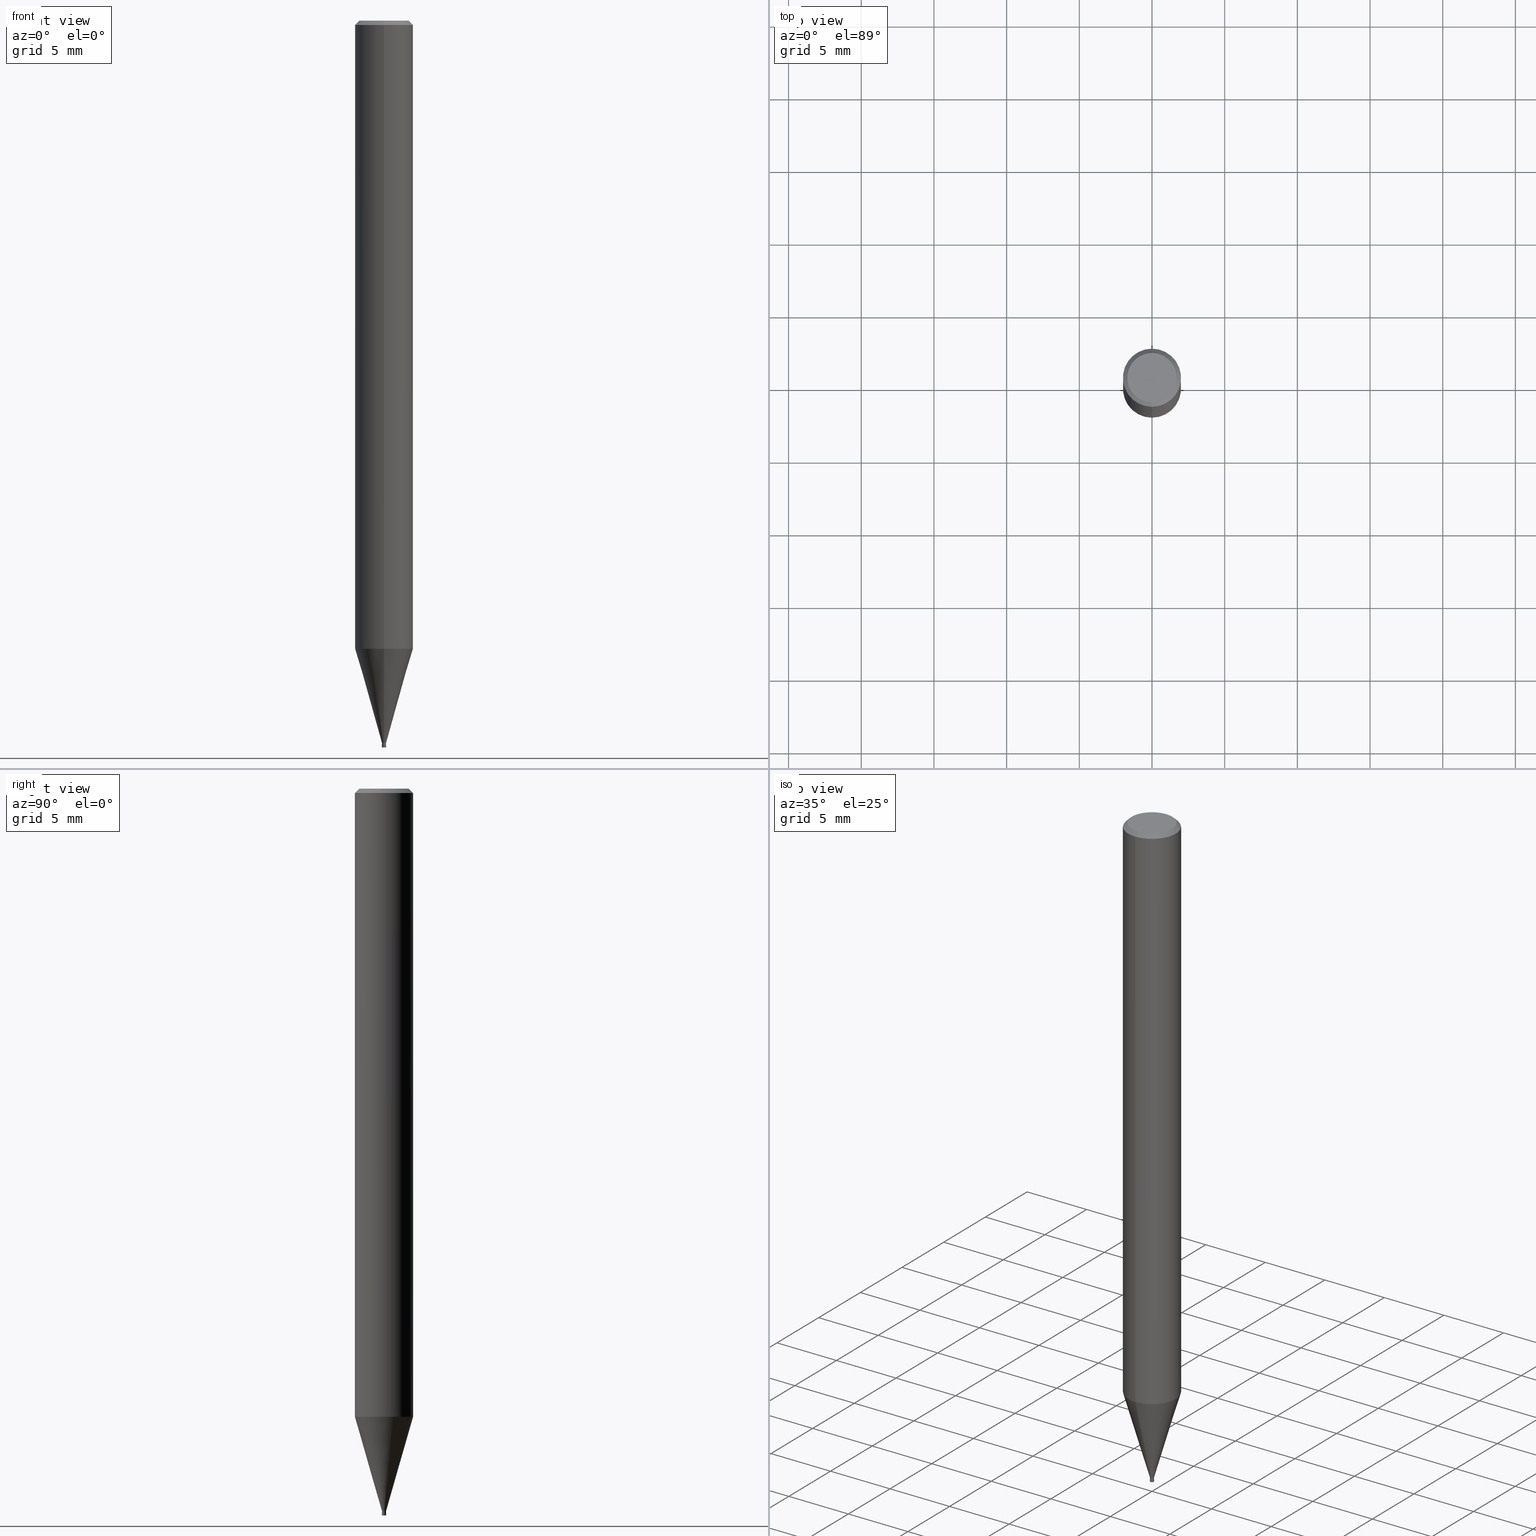
[diagram: canonical four-view strip — front | top / right | iso, engineering-drawing reading convention]
A machine part, canonical four-view strip (front | top / right | iso — engineering-drawing reading convention). The complete STEP part file that produces these views, byte-faithful:
ISO-10303-21;
HEADER;
FILE_DESCRIPTION(('no description'),'unknown implementation level');
FILE_NAME('HLRS4003-002-003-Huellk.stp','  ',('CIMSOURCE GmbH'),('CADClick - KiM GmbH - www.kimweb.de'),'unknown preprocess','ACIS','unknown authorization');
FILE_SCHEMA(('automotive_design'));
ENDSEC;
DATA;
#1=MECHANICAL_DESIGN_GEOMETRIC_PRESENTATION_REPRESENTATION(' ',(#14,#15,#16,#17,#18,#19,#20,#21,#22,#23,#24,#25,#26,#27,#28,#29,#30,#31,#32,#33,#34,#35,#36,#37,#38,#39,#40,#41,#42,#43,#44,#45,#46,#47,#48,#49,#50,#51,#52,#53,#54,#55,#56,#57,#58,#59,#60,#61,#62,#63,#64,#65,#66,#67,#68,#69,#70,#71,#72,#73,#74,#75,#76,#77,#78,#79,#80,#81,#82,#83,#84,#85,#86,#87,#88,#89,#90,#91,#92,#93,#94,#95,#96,#97,#98,#99,#100,#101,#102,#103,#104,#105,#106,#107,#108,#109,#110,#111,#112,#113,#114,#115,#116,#117,#118,#119,#120,#121),#10);
#2=PRODUCT_DEFINITION_CONTEXT('',#122,'design');
#3=APPLICATION_PROTOCOL_DEFINITION('INTERNATIONAL STANDARD','automotive_design',1994,#122);
#4=PRODUCT_CATEGORY_RELATIONSHIP('NONE','NONE',#123,#124);
#5=SHAPE_DEFINITION_REPRESENTATION(#125,#126);
#6=PRODUCT_DEFINITION_CONTEXT('',#127,'design');
#7=APPLICATION_PROTOCOL_DEFINITION('INTERNATIONAL STANDARD','automotive_design',1994,#127);
#8=PRODUCT_CATEGORY_RELATIONSHIP('NONE','NONE',#128,#129);
#9=SHAPE_DEFINITION_REPRESENTATION(#130,#131);
#10= (GEOMETRIC_REPRESENTATION_CONTEXT(3)GLOBAL_UNCERTAINTY_ASSIGNED_CONTEXT((#134))GLOBAL_UNIT_ASSIGNED_CONTEXT((#136,#137,#138))REPRESENTATION_CONTEXT('NONE','WORKSPACE'));
#14=STYLED_ITEM('',(#140),#141);
#15=STYLED_ITEM('',(#142),#143);
#16=STYLED_ITEM('',(#144),#145);
#17=STYLED_ITEM('',(#146),#147);
#18=STYLED_ITEM('',(#148),#149);
#19=STYLED_ITEM('',(#150),#151);
#20=STYLED_ITEM('',(#152),#153);
#21=STYLED_ITEM('',(#154),#155);
#22=STYLED_ITEM('',(#156),#157);
#23=STYLED_ITEM('',(#158),#159);
#24=STYLED_ITEM('',(#160),#161);
#25=STYLED_ITEM('',(#162),#163);
#26=STYLED_ITEM('',(#164),#165);
#27=STYLED_ITEM('',(#166),#167);
#28=STYLED_ITEM('',(#168),#169);
#29=STYLED_ITEM('',(#170),#171);
#30=STYLED_ITEM('',(#172),#173);
#31=STYLED_ITEM('',(#174),#175);
#32=STYLED_ITEM('',(#176),#177);
#33=STYLED_ITEM('',(#178),#179);
#34=STYLED_ITEM('',(#180),#181);
#35=STYLED_ITEM('',(#182),#183);
#36=STYLED_ITEM('',(#184),#185);
#37=STYLED_ITEM('',(#186),#187);
#38=STYLED_ITEM('',(#188),#189);
#39=STYLED_ITEM('',(#190),#191);
#40=STYLED_ITEM('',(#192),#193);
#41=STYLED_ITEM('',(#194),#195);
#42=STYLED_ITEM('',(#196),#197);
#43=STYLED_ITEM('',(#198),#199);
#44=STYLED_ITEM('',(#200),#201);
#45=STYLED_ITEM('',(#202),#203);
#46=STYLED_ITEM('',(#204),#205);
#47=STYLED_ITEM('',(#206),#207);
#48=STYLED_ITEM('',(#208),#209);
#49=STYLED_ITEM('',(#210),#211);
#50=STYLED_ITEM('',(#212),#213);
#51=STYLED_ITEM('',(#214),#215);
#52=STYLED_ITEM('',(#216),#217);
#53=STYLED_ITEM('',(#218),#219);
#54=STYLED_ITEM('',(#220),#221);
#55=STYLED_ITEM('',(#222),#223);
#56=STYLED_ITEM('',(#224),#225);
#57=STYLED_ITEM('',(#226),#227);
#58=STYLED_ITEM('',(#228),#229);
#59=STYLED_ITEM('',(#230),#231);
#60=STYLED_ITEM('',(#232),#233);
#61=STYLED_ITEM('',(#234),#235);
#62=STYLED_ITEM('',(#236),#237);
#63=STYLED_ITEM('',(#238),#239);
#64=STYLED_ITEM('',(#240),#241);
#65=STYLED_ITEM('',(#242),#243);
#66=STYLED_ITEM('',(#244),#245);
#67=STYLED_ITEM('',(#246),#247);
#68=STYLED_ITEM('',(#248),#249);
#69=STYLED_ITEM('',(#250),#251);
#70=STYLED_ITEM('',(#252),#253);
#71=STYLED_ITEM('',(#254),#255);
#72=STYLED_ITEM('',(#256),#257);
#73=STYLED_ITEM('',(#258),#259);
#74=STYLED_ITEM('',(#260),#261);
#75=STYLED_ITEM('',(#262),#263);
#76=STYLED_ITEM('',(#264),#265);
#77=STYLED_ITEM('',(#266),#267);
#78=STYLED_ITEM('',(#268),#269);
#79=STYLED_ITEM('',(#270),#271);
#80=STYLED_ITEM('',(#272),#273);
#81=STYLED_ITEM('',(#274),#275);
#82=STYLED_ITEM('',(#276),#277);
#83=STYLED_ITEM('',(#278),#279);
#84=STYLED_ITEM('',(#280),#281);
#85=STYLED_ITEM('',(#282),#283);
#86=STYLED_ITEM('',(#284),#285);
#87=STYLED_ITEM('',(#286),#287);
#88=STYLED_ITEM('',(#288),#289);
#89=STYLED_ITEM('',(#290),#291);
#90=STYLED_ITEM('',(#292),#293);
#91=STYLED_ITEM('',(#294),#295);
#92=STYLED_ITEM('',(#296),#297);
#93=STYLED_ITEM('',(#298),#299);
#94=STYLED_ITEM('',(#300),#301);
#95=STYLED_ITEM('',(#302),#303);
#96=STYLED_ITEM('',(#304),#305);
#97=STYLED_ITEM('',(#306),#307);
#98=STYLED_ITEM('',(#308),#309);
#99=STYLED_ITEM('',(#310),#311);
#100=STYLED_ITEM('',(#312),#313);
#101=STYLED_ITEM('',(#314),#315);
#102=STYLED_ITEM('',(#316),#317);
#103=STYLED_ITEM('',(#318),#319);
#104=STYLED_ITEM('',(#320),#321);
#105=STYLED_ITEM('',(#322),#323);
#106=STYLED_ITEM('',(#324),#325);
#107=STYLED_ITEM('',(#326),#327);
#108=STYLED_ITEM('',(#328),#329);
#109=STYLED_ITEM('',(#330),#331);
#110=STYLED_ITEM('',(#332),#333);
#111=STYLED_ITEM('',(#334),#335);
#112=STYLED_ITEM('',(#336),#337);
#113=STYLED_ITEM('',(#338),#339);
#114=STYLED_ITEM('',(#340),#341);
#115=STYLED_ITEM('',(#342),#343);
#116=STYLED_ITEM('',(#344),#345);
#117=STYLED_ITEM('',(#346),#347);
#118=STYLED_ITEM('',(#348),#349);
#119=STYLED_ITEM('',(#350),#351);
#120=STYLED_ITEM('',(#352),#353);
#121=STYLED_ITEM('',(#354),#355);
#122=APPLICATION_CONTEXT(' ');
#123=PRODUCT_CATEGORY('part','NONE');
#124=PRODUCT_RELATED_PRODUCT_CATEGORY('detail',' ',(#356));
#125=PRODUCT_DEFINITION_SHAPE('NONE','NONE',#357);
#126=ADVANCED_BREP_SHAPE_REPRESENTATION('1',(#201,#358),#10);
#127=APPLICATION_CONTEXT(' ');
#128=PRODUCT_CATEGORY('part','NONE');
#129=PRODUCT_RELATED_PRODUCT_CATEGORY('detail',' ',(#359));
#130=PRODUCT_DEFINITION_SHAPE('NONE','NONE',#360);
#131=ADVANCED_BREP_SHAPE_REPRESENTATION('2',(#167,#361),#10);
#134=UNCERTAINTY_MEASURE_WITH_UNIT(LENGTH_MEASURE(1.0E-006),#136,'','');
#136= (CONVERSION_BASED_UNIT('MILLIMETRE',#364)LENGTH_UNIT()NAMED_UNIT(#367));
#137= (NAMED_UNIT(#369)PLANE_ANGLE_UNIT()SI_UNIT($,.RADIAN.));
#138= (NAMED_UNIT(#369)SOLID_ANGLE_UNIT()SI_UNIT($,.STERADIAN.));
#140=PRESENTATION_STYLE_ASSIGNMENT((#375));
#141=VERTEX_POINT('',#376);
#142=PRESENTATION_STYLE_ASSIGNMENT((#377));
#143=ADVANCED_FACE('',(#378),#379,.T.);
#144=PRESENTATION_STYLE_ASSIGNMENT((#380));
#145=VERTEX_POINT('',#381);
#146=PRESENTATION_STYLE_ASSIGNMENT((#382));
#147=EDGE_CURVE('',#295,#225,#383,.T.);
#148=PRESENTATION_STYLE_ASSIGNMENT((#384));
#149=VERTEX_POINT('',#385);
#150=PRESENTATION_STYLE_ASSIGNMENT((#386));
#151=EDGE_CURVE('',#187,#323,#387,.T.);
#152=PRESENTATION_STYLE_ASSIGNMENT((#388));
#153=EDGE_CURVE('',#187,#235,#389,.T.);
#154=PRESENTATION_STYLE_ASSIGNMENT((#390));
#155=EDGE_CURVE('',#319,#141,#391,.T.);
#156=PRESENTATION_STYLE_ASSIGNMENT((#392));
#157=EDGE_CURVE('',#271,#275,#393,.T.);
#158=PRESENTATION_STYLE_ASSIGNMENT((#394));
#159=EDGE_CURVE('',#331,#313,#395,.T.);
#160=PRESENTATION_STYLE_ASSIGNMENT((#396));
#161=VERTEX_POINT('',#397);
#162=PRESENTATION_STYLE_ASSIGNMENT((#398));
#163=VERTEX_POINT('',#399);
#164=PRESENTATION_STYLE_ASSIGNMENT((#400));
#165=EDGE_CURVE('',#333,#349,#401,.T.);
#166=PRESENTATION_STYLE_ASSIGNMENT((#402));
#167=MANIFOLD_SOLID_BREP('2',#403);
#168=PRESENTATION_STYLE_ASSIGNMENT((#404));
#169=EDGE_CURVE('',#251,#293,#405,.T.);
#170=PRESENTATION_STYLE_ASSIGNMENT((#406));
#171=ADVANCED_FACE('',(#407,#408),#409,.T.);
#172=PRESENTATION_STYLE_ASSIGNMENT((#410));
#173=EDGE_CURVE('',#297,#211,#411,.T.);
#174=PRESENTATION_STYLE_ASSIGNMENT((#412));
#175=ADVANCED_FACE('',(#413),#414,.T.);
#176=PRESENTATION_STYLE_ASSIGNMENT((#415));
#177=EDGE_CURVE('',#257,#141,#416,.T.);
#178=PRESENTATION_STYLE_ASSIGNMENT((#417));
#179=ADVANCED_FACE('',(#418),#419,.T.);
#180=PRESENTATION_STYLE_ASSIGNMENT((#420));
#181=EDGE_CURVE('',#329,#253,#421,.T.);
#182=PRESENTATION_STYLE_ASSIGNMENT((#422));
#183=ADVANCED_FACE('',(#423),#424,.T.);
#184=PRESENTATION_STYLE_ASSIGNMENT((#425));
#185=EDGE_CURVE('',#329,#241,#426,.T.);
#186=PRESENTATION_STYLE_ASSIGNMENT((#427));
#187=VERTEX_POINT('',#428);
#188=PRESENTATION_STYLE_ASSIGNMENT((#429));
#189=EDGE_CURVE('',#349,#333,#430,.T.);
#190=PRESENTATION_STYLE_ASSIGNMENT((#431));
#191=EDGE_CURVE('',#293,#313,#432,.T.);
#192=PRESENTATION_STYLE_ASSIGNMENT((#433));
#193=VERTEX_POINT('',#434);
#194=PRESENTATION_STYLE_ASSIGNMENT((#435));
#195=EDGE_CURVE('',#323,#187,#436,.T.);
#196=PRESENTATION_STYLE_ASSIGNMENT((#437));
#197=EDGE_CURVE('',#303,#349,#438,.T.);
#198=PRESENTATION_STYLE_ASSIGNMENT((#439));
#199=EDGE_CURVE('',#247,#233,#440,.T.);
#200=PRESENTATION_STYLE_ASSIGNMENT((#441));
#201=MANIFOLD_SOLID_BREP('1',#442);
#202=PRESENTATION_STYLE_ASSIGNMENT((#443));
#203=EDGE_CURVE('',#163,#303,#444,.T.);
#204=PRESENTATION_STYLE_ASSIGNMENT((#445));
#205=EDGE_CURVE('',#293,#251,#446,.T.);
#206=PRESENTATION_STYLE_ASSIGNMENT((#447));
#207=EDGE_CURVE('',#319,#149,#448,.T.);
#208=PRESENTATION_STYLE_ASSIGNMENT((#449));
#209=ADVANCED_FACE('',(#450,#451),#452,.T.);
#210=PRESENTATION_STYLE_ASSIGNMENT((#453));
#211=VERTEX_POINT('',#454);
#212=PRESENTATION_STYLE_ASSIGNMENT((#455));
#213=EDGE_CURVE('',#241,#225,#456,.T.);
#214=PRESENTATION_STYLE_ASSIGNMENT((#457));
#215=EDGE_CURVE('',#193,#253,#458,.T.);
#216=PRESENTATION_STYLE_ASSIGNMENT((#459));
#217=ADVANCED_FACE('',(#460),#461,.T.);
#218=PRESENTATION_STYLE_ASSIGNMENT((#462));
#219=ADVANCED_FACE('',(#463),#464,.T.);
#220=PRESENTATION_STYLE_ASSIGNMENT((#465));
#221=EDGE_CURVE('',#141,#257,#466,.T.);
#222=PRESENTATION_STYLE_ASSIGNMENT((#467));
#223=ADVANCED_FACE('',(#468,#469),#470,.T.);
#224=PRESENTATION_STYLE_ASSIGNMENT((#471));
#225=VERTEX_POINT('',#472);
#226=PRESENTATION_STYLE_ASSIGNMENT((#473));
#227=EDGE_CURVE('',#235,#161,#474,.T.);
#228=PRESENTATION_STYLE_ASSIGNMENT((#475));
#229=EDGE_CURVE('',#333,#211,#476,.T.);
#230=PRESENTATION_STYLE_ASSIGNMENT((#477));
#231=ADVANCED_FACE('',(#478),#479,.F.);
#232=PRESENTATION_STYLE_ASSIGNMENT((#480));
#233=VERTEX_POINT('',#481);
#234=PRESENTATION_STYLE_ASSIGNMENT((#482));
#235=VERTEX_POINT('',#483);
#236=PRESENTATION_STYLE_ASSIGNMENT((#484));
#237=VERTEX_POINT('',#485);
#238=PRESENTATION_STYLE_ASSIGNMENT((#486));
#239=EDGE_CURVE('',#257,#149,#487,.T.);
#240=PRESENTATION_STYLE_ASSIGNMENT((#488));
#241=VERTEX_POINT('',#489);
#242=PRESENTATION_STYLE_ASSIGNMENT((#490));
#243=EDGE_CURVE('',#225,#295,#491,.T.);
#244=PRESENTATION_STYLE_ASSIGNMENT((#492));
#245=EDGE_CURVE('',#247,#161,#493,.T.);
#246=PRESENTATION_STYLE_ASSIGNMENT((#494));
#247=VERTEX_POINT('',#495);
#248=PRESENTATION_STYLE_ASSIGNMENT((#496));
#249=EDGE_CURVE('',#297,#349,#497,.T.);
#250=PRESENTATION_STYLE_ASSIGNMENT((#498));
#251=VERTEX_POINT('',#499);
#252=PRESENTATION_STYLE_ASSIGNMENT((#500));
#253=VERTEX_POINT('',#501);
#254=PRESENTATION_STYLE_ASSIGNMENT((#502));
#255=ADVANCED_FACE('',(#503),#504,.T.);
#256=PRESENTATION_STYLE_ASSIGNMENT((#505));
#257=VERTEX_POINT('',#506);
#258=PRESENTATION_STYLE_ASSIGNMENT((#507));
#259=ADVANCED_FACE('',(#508),#509,.F.);
#260=PRESENTATION_STYLE_ASSIGNMENT((#510));
#261=ADVANCED_FACE('',(#511,#512),#513,.T.);
#262=PRESENTATION_STYLE_ASSIGNMENT((#514));
#263=EDGE_CURVE('',#303,#163,#515,.T.);
#264=PRESENTATION_STYLE_ASSIGNMENT((#516));
#265=EDGE_CURVE('',#295,#329,#517,.T.);
#266=PRESENTATION_STYLE_ASSIGNMENT((#518));
#267=EDGE_CURVE('',#251,#145,#519,.T.);
#268=PRESENTATION_STYLE_ASSIGNMENT((#520));
#269=ADVANCED_FACE('',(#521),#522,.T.);
#270=PRESENTATION_STYLE_ASSIGNMENT((#523));
#271=VERTEX_POINT('',#524);
#272=PRESENTATION_STYLE_ASSIGNMENT((#525));
#273=ADVANCED_FACE('',(#526),#527,.T.);
#274=PRESENTATION_STYLE_ASSIGNMENT((#528));
#275=VERTEX_POINT('',#529);
#276=PRESENTATION_STYLE_ASSIGNMENT((#530));
#277=EDGE_CURVE('',#241,#329,#531,.T.);
#278=PRESENTATION_STYLE_ASSIGNMENT((#532));
#279=EDGE_CURVE('',#275,#271,#533,.T.);
#280=PRESENTATION_STYLE_ASSIGNMENT((#534));
#281=ADVANCED_FACE('',(#535),#536,.T.);
#282=PRESENTATION_STYLE_ASSIGNMENT((#537));
#283=ADVANCED_FACE('',(#538),#539,.T.);
#284=PRESENTATION_STYLE_ASSIGNMENT((#540));
#285=EDGE_CURVE('',#333,#163,#541,.T.);
#286=PRESENTATION_STYLE_ASSIGNMENT((#542));
#287=EDGE_CURVE('',#331,#251,#543,.T.);
#288=PRESENTATION_STYLE_ASSIGNMENT((#544));
#289=EDGE_CURVE('',#193,#241,#545,.T.);
#290=PRESENTATION_STYLE_ASSIGNMENT((#546));
#291=ADVANCED_FACE('',(#547),#548,.F.);
#292=PRESENTATION_STYLE_ASSIGNMENT((#549));
#293=VERTEX_POINT('',#550);
#294=PRESENTATION_STYLE_ASSIGNMENT((#551));
#295=VERTEX_POINT('',#552);
#296=PRESENTATION_STYLE_ASSIGNMENT((#553));
#297=VERTEX_POINT('',#554);
#298=PRESENTATION_STYLE_ASSIGNMENT((#555));
#299=EDGE_CURVE('',#237,#145,#556,.T.);
#300=PRESENTATION_STYLE_ASSIGNMENT((#557));
#301=ADVANCED_FACE('',(#558),#559,.T.);
#302=PRESENTATION_STYLE_ASSIGNMENT((#560));
#303=VERTEX_POINT('',#561);
#304=PRESENTATION_STYLE_ASSIGNMENT((#562));
#305=ADVANCED_FACE('',(#563),#564,.T.);
#306=PRESENTATION_STYLE_ASSIGNMENT((#565));
#307=ADVANCED_FACE('',(#566),#567,.T.);
#308=PRESENTATION_STYLE_ASSIGNMENT((#568));
#309=EDGE_CURVE('',#235,#233,#569,.T.);
#310=PRESENTATION_STYLE_ASSIGNMENT((#570));
#311=ADVANCED_FACE('',(#571),#572,.T.);
#312=PRESENTATION_STYLE_ASSIGNMENT((#573));
#313=VERTEX_POINT('',#574);
#314=PRESENTATION_STYLE_ASSIGNMENT((#575));
#315=EDGE_CURVE('',#313,#331,#576,.T.);
#316=PRESENTATION_STYLE_ASSIGNMENT((#577));
#317=ADVANCED_FACE('',(#578),#579,.T.);
#318=PRESENTATION_STYLE_ASSIGNMENT((#580));
#319=VERTEX_POINT('',#581);
#320=PRESENTATION_STYLE_ASSIGNMENT((#582));
#321=ADVANCED_FACE('',(#583),#584,.T.);
#322=PRESENTATION_STYLE_ASSIGNMENT((#585));
#323=VERTEX_POINT('',#586);
#324=PRESENTATION_STYLE_ASSIGNMENT((#587));
#325=EDGE_CURVE('',#253,#193,#588,.T.);
#326=PRESENTATION_STYLE_ASSIGNMENT((#589));
#327=EDGE_CURVE('',#161,#247,#590,.T.);
#328=PRESENTATION_STYLE_ASSIGNMENT((#591));
#329=VERTEX_POINT('',#592);
#330=PRESENTATION_STYLE_ASSIGNMENT((#593));
#331=VERTEX_POINT('',#594);
#332=PRESENTATION_STYLE_ASSIGNMENT((#595));
#333=VERTEX_POINT('',#596);
#334=PRESENTATION_STYLE_ASSIGNMENT((#597));
#335=EDGE_CURVE('',#211,#297,#598,.T.);
#336=PRESENTATION_STYLE_ASSIGNMENT((#599));
#337=ADVANCED_FACE('',(#600),#601,.T.);
#338=PRESENTATION_STYLE_ASSIGNMENT((#602));
#339=EDGE_CURVE('',#275,#319,#603,.T.);
#340=PRESENTATION_STYLE_ASSIGNMENT((#604));
#341=EDGE_CURVE('',#233,#235,#605,.T.);
#342=PRESENTATION_STYLE_ASSIGNMENT((#606));
#343=EDGE_CURVE('',#149,#319,#607,.T.);
#344=PRESENTATION_STYLE_ASSIGNMENT((#608));
#345=EDGE_CURVE('',#237,#293,#609,.T.);
#346=PRESENTATION_STYLE_ASSIGNMENT((#610));
#347=ADVANCED_FACE('',(#611),#612,.F.);
#348=PRESENTATION_STYLE_ASSIGNMENT((#613));
#349=VERTEX_POINT('',#614);
#350=PRESENTATION_STYLE_ASSIGNMENT((#615));
#351=EDGE_CURVE('',#145,#237,#616,.T.);
#352=PRESENTATION_STYLE_ASSIGNMENT((#617));
#353=EDGE_CURVE('',#233,#323,#618,.T.);
#354=PRESENTATION_STYLE_ASSIGNMENT((#619));
#355=EDGE_CURVE('',#149,#271,#620,.T.);
#356=PRODUCT('1','1','PART-1-DESC',(#621));
#357=PRODUCT_DEFINITION('NONE','NONE',#622,#2);
#358=AXIS2_PLACEMENT_3D('',#623,#624,#625);
#359=PRODUCT('2','2','PART-2-DESC',(#626));
#360=PRODUCT_DEFINITION('NONE','NONE',#627,#6);
#361=AXIS2_PLACEMENT_3D('',#628,#629,#630);
#364=LENGTH_MEASURE_WITH_UNIT(LENGTH_MEASURE(1.0),#631);
#367=DIMENSIONAL_EXPONENTS(1.0,0.0,0.0,0.0,0.0,0.0,0.0);
#369=DIMENSIONAL_EXPONENTS(0.0,0.0,0.0,0.0,0.0,0.0,0.0);
#375=POINT_STYLE(' ',#632,POSITIVE_LENGTH_MEASURE(1.0E-006),#633);
#376=CARTESIAN_POINT('',(0.0,0.0675,-49.945));
#377=SURFACE_STYLE_USAGE(.BOTH.,#634);
#378=FACE_OUTER_BOUND('',#635,.T.);
#379=PLANE('',#636);
#380=POINT_STYLE(' ',#637,POSITIVE_LENGTH_MEASURE(1.0E-006),#638);
#381=CARTESIAN_POINT('',(1.77445460668862E-017,-0.1449,-49.81));
#382=CURVE_STYLE('',#639,POSITIVE_LENGTH_MEASURE(1.0E-006),#640);
#383=CIRCLE('',#641,0.13995);
#384=POINT_STYLE(' ',#642,POSITIVE_LENGTH_MEASURE(1.0E-006),#643);
#385=CARTESIAN_POINT('',(8.26609288830105E-018,-0.0675,-49.82));
#386=CURVE_STYLE('',#644,POSITIVE_LENGTH_MEASURE(1.0E-006),#645);
#387=CIRCLE('',#646,2.0);
#388=CURVE_STYLE('',#647,POSITIVE_LENGTH_MEASURE(1.0E-006),#648);
#389=LINE('',#649,#650);
#390=CURVE_STYLE('',#651,POSITIVE_LENGTH_MEASURE(1.0E-006),#652);
#391=LINE('',#653,#654);
#392=CURVE_STYLE('',#655,POSITIVE_LENGTH_MEASURE(1.0E-006),#656);
#393=CIRCLE('',#657,0.14495);
#394=CURVE_STYLE('',#658,POSITIVE_LENGTH_MEASURE(1.0E-006),#659);
#395=CIRCLE('',#660,0.0675);
#396=POINT_STYLE(' ',#661,POSITIVE_LENGTH_MEASURE(1.0E-006),#662);
#397=CARTESIAN_POINT('',(2.08183080149804E-016,-1.7,0.00999999999999801));
#398=POINT_STYLE(' ',#663,POSITIVE_LENGTH_MEASURE(1.0E-006),#664);
#399=CARTESIAN_POINT('',(1.59198825996909E-017,-0.13,-49.99));
#400=CURVE_STYLE('',#665,POSITIVE_LENGTH_MEASURE(1.0E-006),#666);
#401=CIRCLE('',#667,0.15);
#402=SURFACE_STYLE_USAGE(.BOTH.,#668);
#403=CLOSED_SHELL('',(#291,#317,#183,#259,#231,#223,#219,#283,#261,#347));
#404=CURVE_STYLE('',#669,POSITIVE_LENGTH_MEASURE(1.0E-006),#670);
#405=CIRCLE('',#671,0.0675);
#406=SURFACE_STYLE_USAGE(.BOTH.,#672);
#407=FACE_OUTER_BOUND('',#673,.T.);
#408=FACE_BOUND('',#674,.T.);
#409=PLANE('',#675);
#410=CURVE_STYLE('',#676,POSITIVE_LENGTH_MEASURE(1.0E-006),#677);
#411=CIRCLE('',#678,0.1499);
#412=SURFACE_STYLE_USAGE(.BOTH.,#679);
#413=FACE_OUTER_BOUND('',#680,.T.);
#414=PLANE('',#681);
#415=CURVE_STYLE('',#682,POSITIVE_LENGTH_MEASURE(1.0E-006),#683);
#416=CIRCLE('',#684,0.0675);
#417=SURFACE_STYLE_USAGE(.BOTH.,#685);
#418=FACE_OUTER_BOUND('',#686,.T.);
#419=CYLINDRICAL_SURFACE('',#687,0.0675);
#420=CURVE_STYLE('',#688,POSITIVE_LENGTH_MEASURE(1.0E-006),#689);
#421=LINE('',#690,#691);
#422=SURFACE_STYLE_USAGE(.BOTH.,#692);
#423=FACE_OUTER_BOUND('',#693,.T.);
#424=CONICAL_SURFACE('',#694,0.14995,0.000624999918619742);
#425=CURVE_STYLE('',#695,POSITIVE_LENGTH_MEASURE(1.0E-006),#696);
#426=CIRCLE('',#697,0.13995);
#427=POINT_STYLE(' ',#698,POSITIVE_LENGTH_MEASURE(1.0E-006),#699);
#428=CARTESIAN_POINT('',(2.44921270764475E-016,-2.0,-43.203));
#429=CURVE_STYLE('',#700,POSITIVE_LENGTH_MEASURE(1.0E-006),#701);
#430=CIRCLE('',#702,0.15);
#431=CURVE_STYLE('',#703,POSITIVE_LENGTH_MEASURE(1.0E-006),#704);
#432=LINE('',#705,#706);
#433=POINT_STYLE(' ',#707,POSITIVE_LENGTH_MEASURE(1.0E-006),#708);
#434=CARTESIAN_POINT('',(0.0,1.99995,-43.203));
#435=CURVE_STYLE('',#709,POSITIVE_LENGTH_MEASURE(1.0E-006),#710);
#436=CIRCLE('',#711,2.0);
#437=CURVE_STYLE('',#712,POSITIVE_LENGTH_MEASURE(1.0E-006),#713);
#438=CIRCLE('',#714,0.0199999999999999);
#439=CURVE_STYLE('',#715,POSITIVE_LENGTH_MEASURE(1.0E-006),#716);
#440=LINE('',#717,#718);
#441=SURFACE_STYLE_USAGE(.BOTH.,#719);
#442=CLOSED_SHELL('',(#179,#307,#301,#217,#273,#305,#171,#143,#269,#321,#281,#337,#209,#311,#255,#175));
#443=CURVE_STYLE('',#720,POSITIVE_LENGTH_MEASURE(1.0E-006),#721);
#444=CIRCLE('',#722,0.13);
#445=CURVE_STYLE('',#723,POSITIVE_LENGTH_MEASURE(1.0E-006),#724);
#446=CIRCLE('',#725,0.0675);
#447=CURVE_STYLE('',#726,POSITIVE_LENGTH_MEASURE(1.0E-006),#727);
#448=CIRCLE('',#728,0.0675);
#449=SURFACE_STYLE_USAGE(.BOTH.,#729);
#450=FACE_OUTER_BOUND('',#730,.T.);
#451=FACE_BOUND('',#731,.T.);
#452=PLANE('',#732);
#453=POINT_STYLE(' ',#733,POSITIVE_LENGTH_MEASURE(1.0E-006),#734);
#454=CARTESIAN_POINT('',(1.83568492437974E-017,-0.1499,-49.81));
#455=CURVE_STYLE('',#735,POSITIVE_LENGTH_MEASURE(1.0E-006),#736);
#456=LINE('',#737,#738);
#457=CURVE_STYLE('',#739,POSITIVE_LENGTH_MEASURE(1.0E-006),#740);
#458=CIRCLE('',#741,1.99995);
#459=SURFACE_STYLE_USAGE(.BOTH.,#742);
#460=FACE_OUTER_BOUND('',#743,.T.);
#461=CONICAL_SURFACE('',#744,1.06995,0.27923596926092);
#462=SURFACE_STYLE_USAGE(.BOTH.,#745);
#463=FACE_OUTER_BOUND('',#746,.T.);
#464=CONICAL_SURFACE('',#747,0.14995,0.000624999918619742);
#465=CURVE_STYLE('',#748,POSITIVE_LENGTH_MEASURE(1.0E-006),#749);
#466=CIRCLE('',#750,0.0675);
#467=SURFACE_STYLE_USAGE(.BOTH.,#751);
#468=FACE_OUTER_BOUND('',#752,.T.);
#469=FACE_BOUND('',#753,.T.);
#470=PLANE('',#754);
#471=POINT_STYLE(' ',#755,POSITIVE_LENGTH_MEASURE(1.0E-006),#756);
#472=CARTESIAN_POINT('',(0.0,0.13995,-49.81));
#473=CURVE_STYLE('',#757,POSITIVE_LENGTH_MEASURE(1.0E-006),#758);
#474=LINE('',#759,#760);
#475=CURVE_STYLE('',#761,POSITIVE_LENGTH_MEASURE(1.0E-006),#762);
#476=LINE('',#763,#764);
#477=SURFACE_STYLE_USAGE(.BOTH.,#765);
#478=FACE_OUTER_BOUND('',#766,.T.);
#479=CONICAL_SURFACE('',#767,0.1062,1.44230912436268);
#480=POINT_STYLE(' ',#768,POSITIVE_LENGTH_MEASURE(1.0E-006),#769);
#481=CARTESIAN_POINT('',(0.0,2.0,-0.289999999999999));
#482=POINT_STYLE(' ',#770,POSITIVE_LENGTH_MEASURE(1.0E-006),#771);
#483=CARTESIAN_POINT('',(2.44921270764475E-016,-2.0,-0.289999999999999));
#484=POINT_STYLE(' ',#772,POSITIVE_LENGTH_MEASURE(1.0E-006),#773);
#485=CARTESIAN_POINT('',(0.0,0.1449,-49.81));
#486=CURVE_STYLE('',#774,POSITIVE_LENGTH_MEASURE(1.0E-006),#775);
#487=LINE('',#776,#777);
#488=POINT_STYLE(' ',#778,POSITIVE_LENGTH_MEASURE(1.0E-006),#779);
#489=CARTESIAN_POINT('',(0.0,0.13995,-49.69));
#490=CURVE_STYLE('',#780,POSITIVE_LENGTH_MEASURE(1.0E-006),#781);
#491=CIRCLE('',#782,0.13995);
#492=CURVE_STYLE('',#783,POSITIVE_LENGTH_MEASURE(1.0E-006),#784);
#493=CIRCLE('',#785,1.7);
#494=POINT_STYLE(' ',#786,POSITIVE_LENGTH_MEASURE(1.0E-006),#787);
#495=CARTESIAN_POINT('',(0.0,1.7,0.00999999999999801));
#496=CURVE_STYLE('',#788,POSITIVE_LENGTH_MEASURE(1.0E-006),#789);
#497=LINE('',#790,#791);
#498=POINT_STYLE(' ',#792,POSITIVE_LENGTH_MEASURE(1.0E-006),#793);
#499=CARTESIAN_POINT('',(8.26609288830105E-018,-0.0675,-49.82));
#500=POINT_STYLE(' ',#794,POSITIVE_LENGTH_MEASURE(1.0E-006),#795);
#501=CARTESIAN_POINT('',(2.44915147732706E-016,-1.99995,-43.203));
#502=SURFACE_STYLE_USAGE(.BOTH.,#796);
#503=FACE_OUTER_BOUND('',#797,.T.);
#504=CYLINDRICAL_SURFACE('',#798,0.0675);
#505=POINT_STYLE(' ',#799,POSITIVE_LENGTH_MEASURE(1.0E-006),#800);
#506=CARTESIAN_POINT('',(8.26609288830105E-018,-0.0675,-49.945));
#507=SURFACE_STYLE_USAGE(.BOTH.,#801);
#508=FACE_OUTER_BOUND('',#802,.T.);
#509=CONICAL_SURFACE('',#803,0.1062,1.44230912436268);
#510=SURFACE_STYLE_USAGE(.BOTH.,#804);
#511=FACE_BOUND('',#805,.T.);
#512=FACE_OUTER_BOUND('',#806,.T.);
#513=PLANE('',#807);
#514=CURVE_STYLE('',#808,POSITIVE_LENGTH_MEASURE(1.0E-006),#809);
#515=CIRCLE('',#810,0.13);
#516=CURVE_STYLE('',#811,POSITIVE_LENGTH_MEASURE(1.0E-006),#812);
#517=LINE('',#813,#814);
#518=CURVE_STYLE('',#815,POSITIVE_LENGTH_MEASURE(1.0E-006),#816);
#519=LINE('',#817,#818);
#520=SURFACE_STYLE_USAGE(.BOTH.,#819);
#521=FACE_OUTER_BOUND('',#820,.T.);
#522=CONICAL_SURFACE('',#821,1.85,0.785398163397453);
#523=POINT_STYLE(' ',#822,POSITIVE_LENGTH_MEASURE(1.0E-006),#823);
#524=CARTESIAN_POINT('',(1.77506690986554E-017,-0.14495,-49.81));
#525=SURFACE_STYLE_USAGE(.BOTH.,#824);
#526=FACE_OUTER_BOUND('',#825,.T.);
#527=CYLINDRICAL_SURFACE('',#826,2.0);
#528=POINT_STYLE(' ',#827,POSITIVE_LENGTH_MEASURE(1.0E-006),#828);
#529=CARTESIAN_POINT('',(0.0,0.14495,-49.81));
#530=CURVE_STYLE('',#829,POSITIVE_LENGTH_MEASURE(1.0E-006),#830);
#531=CIRCLE('',#831,0.13995);
#532=CURVE_STYLE('',#832,POSITIVE_LENGTH_MEASURE(1.0E-006),#833);
#533=CIRCLE('',#834,0.14495);
#534=SURFACE_STYLE_USAGE(.BOTH.,#835);
#535=FACE_OUTER_BOUND('',#836,.T.);
#536=CONICAL_SURFACE('',#837,1.06995,0.27923596926092);
#537=SURFACE_STYLE_USAGE(.BOTH.,#838);
#538=FACE_OUTER_BOUND('',#839,.T.);
#539=TOROIDAL_SURFACE('',#840,0.13,0.0199999999999999);
#540=CURVE_STYLE('',#841,POSITIVE_LENGTH_MEASURE(1.0E-006),#842);
#541=CIRCLE('',#843,0.0199999999999999);
#542=CURVE_STYLE('',#844,POSITIVE_LENGTH_MEASURE(1.0E-006),#845);
#543=LINE('',#846,#847);
#544=CURVE_STYLE('',#848,POSITIVE_LENGTH_MEASURE(1.0E-006),#849);
#545=LINE('',#850,#851);
#546=SURFACE_STYLE_USAGE(.BOTH.,#852);
#547=FACE_OUTER_BOUND('',#853,.T.);
#548=CYLINDRICAL_SURFACE('',#854,0.0675);
#549=POINT_STYLE(' ',#855,POSITIVE_LENGTH_MEASURE(1.0E-006),#856);
#550=CARTESIAN_POINT('',(0.0,0.0675,-49.82));
#551=POINT_STYLE(' ',#857,POSITIVE_LENGTH_MEASURE(1.0E-006),#858);
#552=CARTESIAN_POINT('',(1.71383659217442E-017,-0.13995,-49.81));
#553=POINT_STYLE(' ',#859,POSITIVE_LENGTH_MEASURE(1.0E-006),#860);
#554=CARTESIAN_POINT('',(0.0,0.1499,-49.81));
#555=CURVE_STYLE('',#861,POSITIVE_LENGTH_MEASURE(1.0E-006),#862);
#556=CIRCLE('',#863,0.1449);
#557=SURFACE_STYLE_USAGE(.BOTH.,#864);
#558=FACE_OUTER_BOUND('',#865,.T.);
#559=CYLINDRICAL_SURFACE('',#866,0.13995);
#560=POINT_STYLE(' ',#867,POSITIVE_LENGTH_MEASURE(1.0E-006),#868);
#561=CARTESIAN_POINT('',(0.0,0.13,-49.99));
#562=SURFACE_STYLE_USAGE(.BOTH.,#869);
#563=FACE_OUTER_BOUND('',#870,.T.);
#564=CONICAL_SURFACE('',#871,1.85,0.785398163397453);
#565=SURFACE_STYLE_USAGE(.BOTH.,#872);
#566=FACE_OUTER_BOUND('',#873,.T.);
#567=CONICAL_SURFACE('',#874,0.106225,1.44239116379722);
#568=CURVE_STYLE('',#875,POSITIVE_LENGTH_MEASURE(1.0E-006),#876);
#569=CIRCLE('',#877,2.0);
#570=SURFACE_STYLE_USAGE(.BOTH.,#878);
#571=FACE_OUTER_BOUND('',#879,.T.);
#572=CONICAL_SURFACE('',#880,0.106225,1.44239116379722);
#573=POINT_STYLE(' ',#881,POSITIVE_LENGTH_MEASURE(1.0E-006),#882);
#574=CARTESIAN_POINT('',(0.0,0.0675,-49.99));
#575=CURVE_STYLE('',#883,POSITIVE_LENGTH_MEASURE(1.0E-006),#884);
#576=CIRCLE('',#885,0.0675);
#577=SURFACE_STYLE_USAGE(.BOTH.,#886);
#578=FACE_OUTER_BOUND('',#887,.T.);
#579=TOROIDAL_SURFACE('',#888,0.13,0.0199999999999999);
#580=POINT_STYLE(' ',#889,POSITIVE_LENGTH_MEASURE(1.0E-006),#890);
#581=CARTESIAN_POINT('',(0.0,0.0675,-49.82));
#582=SURFACE_STYLE_USAGE(.BOTH.,#891);
#583=FACE_OUTER_BOUND('',#892,.T.);
#584=CYLINDRICAL_SURFACE('',#893,2.0);
#585=POINT_STYLE(' ',#894,POSITIVE_LENGTH_MEASURE(1.0E-006),#895);
#586=CARTESIAN_POINT('',(0.0,2.0,-43.203));
#587=CURVE_STYLE('',#896,POSITIVE_LENGTH_MEASURE(1.0E-006),#897);
#588=CIRCLE('',#898,1.99995);
#589=CURVE_STYLE('',#899,POSITIVE_LENGTH_MEASURE(1.0E-006),#900);
#590=CIRCLE('',#901,1.7);
#591=POINT_STYLE(' ',#902,POSITIVE_LENGTH_MEASURE(1.0E-006),#903);
#592=CARTESIAN_POINT('',(1.71383659217442E-017,-0.13995,-49.69));
#593=POINT_STYLE(' ',#904,POSITIVE_LENGTH_MEASURE(1.0E-006),#905);
#594=CARTESIAN_POINT('',(8.26609288830105E-018,-0.0675,-49.99));
#595=POINT_STYLE(' ',#906,POSITIVE_LENGTH_MEASURE(1.0E-006),#907);
#596=CARTESIAN_POINT('',(1.83690953073357E-017,-0.15,-49.97));
#597=CURVE_STYLE('',#908,POSITIVE_LENGTH_MEASURE(1.0E-006),#909);
#598=CIRCLE('',#910,0.1499);
#599=SURFACE_STYLE_USAGE(.BOTH.,#911);
#600=FACE_OUTER_BOUND('',#912,.T.);
#601=CYLINDRICAL_SURFACE('',#913,0.13995);
#602=CURVE_STYLE('',#914,POSITIVE_LENGTH_MEASURE(1.0E-006),#915);
#603=LINE('',#916,#917);
#604=CURVE_STYLE('',#918,POSITIVE_LENGTH_MEASURE(1.0E-006),#919);
#605=CIRCLE('',#920,2.0);
#606=CURVE_STYLE('',#921,POSITIVE_LENGTH_MEASURE(1.0E-006),#922);
#607=CIRCLE('',#923,0.0675);
#608=CURVE_STYLE('',#924,POSITIVE_LENGTH_MEASURE(1.0E-006),#925);
#609=LINE('',#926,#927);
#610=SURFACE_STYLE_USAGE(.BOTH.,#928);
#611=FACE_OUTER_BOUND('',#929,.T.);
#612=CYLINDRICAL_SURFACE('',#930,0.0675);
#613=POINT_STYLE(' ',#931,POSITIVE_LENGTH_MEASURE(1.0E-006),#932);
#614=CARTESIAN_POINT('',(0.0,0.15,-49.97));
#615=CURVE_STYLE('',#933,POSITIVE_LENGTH_MEASURE(1.0E-006),#934);
#616=CIRCLE('',#935,0.1449);
#617=CURVE_STYLE('',#936,POSITIVE_LENGTH_MEASURE(1.0E-006),#937);
#618=LINE('',#938,#939);
#619=CURVE_STYLE('',#940,POSITIVE_LENGTH_MEASURE(1.0E-006),#941);
#620=LINE('',#942,#943);
#621=PRODUCT_CONTEXT('',#122,'mechanical');
#622=PRODUCT_DEFINITION_FORMATION_WITH_SPECIFIED_SOURCE(' ','NONE',#356,.NOT_KNOWN.);
#623=CARTESIAN_POINT('',(0.0,0.0,0.0));
#624=DIRECTION('',(0.0,0.0,1.0));
#625=DIRECTION('',(1.0,0.0,0.0));
#626=PRODUCT_CONTEXT('',#127,'mechanical');
#627=PRODUCT_DEFINITION_FORMATION_WITH_SPECIFIED_SOURCE(' ','NONE',#359,.NOT_KNOWN.);
#628=CARTESIAN_POINT('',(0.0,0.0,0.0));
#629=DIRECTION('',(0.0,0.0,1.0));
#630=DIRECTION('',(1.0,0.0,0.0));
#631= (NAMED_UNIT(#367)LENGTH_UNIT()SI_UNIT(.MILLI.,.METRE.));
#632=PRE_DEFINED_MARKER('');
#633=COLOUR_RGB('',0.498039215803146,0.498039215803146,0.498039215803146);
#634=SURFACE_SIDE_STYLE('',(#945));
#635=EDGE_LOOP('',(#946,#947));
#636=AXIS2_PLACEMENT_3D('',#948,#949,#950);
#637=PRE_DEFINED_MARKER('');
#638=COLOUR_RGB('',0.800000011920929,0.800000011920929,0.800000011920929);
#639=DRAUGHTING_PRE_DEFINED_CURVE_FONT('continuous');
#640=COLOUR_RGB('',0.498039215803146,0.498039215803146,0.498039215803146);
#641=AXIS2_PLACEMENT_3D('',#951,#952,#953);
#642=PRE_DEFINED_MARKER('');
#643=COLOUR_RGB('',0.498039215803146,0.498039215803146,0.498039215803146);
#644=DRAUGHTING_PRE_DEFINED_CURVE_FONT('continuous');
#645=COLOUR_RGB('',0.498039215803146,0.498039215803146,0.498039215803146);
#646=AXIS2_PLACEMENT_3D('',#954,#955,#956);
#647=DRAUGHTING_PRE_DEFINED_CURVE_FONT('continuous');
#648=COLOUR_RGB('',0.498039215803146,0.498039215803146,0.498039215803146);
#649=CARTESIAN_POINT('',(2.44921270764475E-016,-2.0,-21.7465));
#650=VECTOR('',#957,1.0);
#651=DRAUGHTING_PRE_DEFINED_CURVE_FONT('continuous');
#652=COLOUR_RGB('',0.498039215803146,0.498039215803146,0.498039215803146);
#653=CARTESIAN_POINT('',(-8.26609288830105E-018,0.0675,-49.8825));
#654=VECTOR('',#958,1.0);
#655=DRAUGHTING_PRE_DEFINED_CURVE_FONT('continuous');
#656=COLOUR_RGB('',0.498039215803146,0.498039215803146,0.498039215803146);
#657=AXIS2_PLACEMENT_3D('',#959,#960,#961);
#658=DRAUGHTING_PRE_DEFINED_CURVE_FONT('continuous');
#659=COLOUR_RGB('',0.800000011920929,0.800000011920929,0.800000011920929);
#660=AXIS2_PLACEMENT_3D('',#962,#963,#964);
#661=PRE_DEFINED_MARKER('');
#662=COLOUR_RGB('',0.498039215803146,0.498039215803146,0.498039215803146);
#663=PRE_DEFINED_MARKER('');
#664=COLOUR_RGB('',0.800000011920929,0.800000011920929,0.800000011920929);
#665=DRAUGHTING_PRE_DEFINED_CURVE_FONT('continuous');
#666=COLOUR_RGB('',0.800000011920929,0.800000011920929,0.800000011920929);
#667=AXIS2_PLACEMENT_3D('',#965,#966,#967);
#668=SURFACE_SIDE_STYLE('',(#968));
#669=DRAUGHTING_PRE_DEFINED_CURVE_FONT('continuous');
#670=COLOUR_RGB('',0.800000011920929,0.800000011920929,0.800000011920929);
#671=AXIS2_PLACEMENT_3D('',#969,#970,#971);
#672=SURFACE_SIDE_STYLE('',(#972));
#673=EDGE_LOOP('',(#973,#974));
#674=EDGE_LOOP('',(#975,#976));
#675=AXIS2_PLACEMENT_3D('',#977,#978,#979);
#676=DRAUGHTING_PRE_DEFINED_CURVE_FONT('continuous');
#677=COLOUR_RGB('',0.800000011920929,0.800000011920929,0.800000011920929);
#678=AXIS2_PLACEMENT_3D('',#980,#981,#982);
#679=SURFACE_SIDE_STYLE('',(#983));
#680=EDGE_LOOP('',(#984,#985));
#681=AXIS2_PLACEMENT_3D('',#986,#987,#988);
#682=DRAUGHTING_PRE_DEFINED_CURVE_FONT('continuous');
#683=COLOUR_RGB('',0.498039215803146,0.498039215803146,0.498039215803146);
#684=AXIS2_PLACEMENT_3D('',#989,#990,#991);
#685=SURFACE_SIDE_STYLE('',(#992));
#686=EDGE_LOOP('',(#993,#994,#995,#996));
#687=AXIS2_PLACEMENT_3D('',#997,#998,#999);
#688=DRAUGHTING_PRE_DEFINED_CURVE_FONT('continuous');
#689=COLOUR_RGB('',0.498039215803146,0.498039215803146,0.498039215803146);
#690=CARTESIAN_POINT('',(1.31026756827225E-016,-1.06995,-46.4465));
#691=VECTOR('',#1000,1.0);
#692=SURFACE_SIDE_STYLE('',(#1001));
#693=EDGE_LOOP('',(#1002,#1003,#1004,#1005));
#694=AXIS2_PLACEMENT_3D('',#1006,#1007,#1008);
#695=DRAUGHTING_PRE_DEFINED_CURVE_FONT('continuous');
#696=COLOUR_RGB('',0.498039215803146,0.498039215803146,0.498039215803146);
#697=AXIS2_PLACEMENT_3D('',#1009,#1010,#1011);
#698=PRE_DEFINED_MARKER('');
#699=COLOUR_RGB('',0.498039215803146,0.498039215803146,0.498039215803146);
#700=DRAUGHTING_PRE_DEFINED_CURVE_FONT('continuous');
#701=COLOUR_RGB('',0.800000011920929,0.800000011920929,0.800000011920929);
#702=AXIS2_PLACEMENT_3D('',#1012,#1013,#1014);
#703=DRAUGHTING_PRE_DEFINED_CURVE_FONT('continuous');
#704=COLOUR_RGB('',0.800000011920929,0.800000011920929,0.800000011920929);
#705=CARTESIAN_POINT('',(-8.26609288830105E-018,0.0675,-49.905));
#706=VECTOR('',#1015,1.0);
#707=PRE_DEFINED_MARKER('');
#708=COLOUR_RGB('',0.498039215803146,0.498039215803146,0.498039215803146);
#709=DRAUGHTING_PRE_DEFINED_CURVE_FONT('continuous');
#710=COLOUR_RGB('',0.498039215803146,0.498039215803146,0.498039215803146);
#711=AXIS2_PLACEMENT_3D('',#1016,#1017,#1018);
#712=DRAUGHTING_PRE_DEFINED_CURVE_FONT('continuous');
#713=COLOUR_RGB('',0.800000011920929,0.800000011920929,0.800000011920929);
#714=AXIS2_PLACEMENT_3D('',#1019,#1020,#1021);
#715=DRAUGHTING_PRE_DEFINED_CURVE_FONT('continuous');
#716=COLOUR_RGB('',0.498039215803146,0.498039215803146,0.498039215803146);
#717=CARTESIAN_POINT('',(-2.2655217545714E-016,1.85,-0.140000000000001));
#718=VECTOR('',#1022,1.0);
#719=SURFACE_SIDE_STYLE('',(#1023));
#720=DRAUGHTING_PRE_DEFINED_CURVE_FONT('continuous');
#721=COLOUR_RGB('',0.800000011920929,0.800000011920929,0.800000011920929);
#722=AXIS2_PLACEMENT_3D('',#1024,#1025,#1026);
#723=DRAUGHTING_PRE_DEFINED_CURVE_FONT('continuous');
#724=COLOUR_RGB('',0.800000011920929,0.800000011920929,0.800000011920929);
#725=AXIS2_PLACEMENT_3D('',#1027,#1028,#1029);
#726=DRAUGHTING_PRE_DEFINED_CURVE_FONT('continuous');
#727=COLOUR_RGB('',0.498039215803146,0.498039215803146,0.498039215803146);
#728=AXIS2_PLACEMENT_3D('',#1030,#1031,#1032);
#729=SURFACE_SIDE_STYLE('',(#1033));
#730=EDGE_LOOP('',(#1034,#1035));
#731=EDGE_LOOP('',(#1036,#1037));
#732=AXIS2_PLACEMENT_3D('',#1038,#1039,#1040);
#733=PRE_DEFINED_MARKER('');
#734=COLOUR_RGB('',0.800000011920929,0.800000011920929,0.800000011920929);
#735=DRAUGHTING_PRE_DEFINED_CURVE_FONT('continuous');
#736=COLOUR_RGB('',0.498039215803146,0.498039215803146,0.498039215803146);
#737=CARTESIAN_POINT('',(-1.71383659217442E-017,0.13995,-49.75));
#738=VECTOR('',#1041,1.0);
#739=DRAUGHTING_PRE_DEFINED_CURVE_FONT('continuous');
#740=COLOUR_RGB('',0.498039215803146,0.498039215803146,0.498039215803146);
#741=AXIS2_PLACEMENT_3D('',#1042,#1043,#1044);
#742=SURFACE_SIDE_STYLE('',(#1045));
#743=EDGE_LOOP('',(#1046,#1047,#1048,#1049));
#744=AXIS2_PLACEMENT_3D('',#1050,#1051,#1052);
#745=SURFACE_SIDE_STYLE('',(#1053));
#746=EDGE_LOOP('',(#1054,#1055,#1056,#1057));
#747=AXIS2_PLACEMENT_3D('',#1058,#1059,#1060);
#748=DRAUGHTING_PRE_DEFINED_CURVE_FONT('continuous');
#749=COLOUR_RGB('',0.498039215803146,0.498039215803146,0.498039215803146);
#750=AXIS2_PLACEMENT_3D('',#1061,#1062,#1063);
#751=SURFACE_SIDE_STYLE('',(#1064));
#752=EDGE_LOOP('',(#1065,#1066));
#753=EDGE_LOOP('',(#1067,#1068));
#754=AXIS2_PLACEMENT_3D('',#1069,#1070,#1071);
#755=PRE_DEFINED_MARKER('');
#756=COLOUR_RGB('',0.498039215803146,0.498039215803146,0.498039215803146);
#757=DRAUGHTING_PRE_DEFINED_CURVE_FONT('continuous');
#758=COLOUR_RGB('',0.498039215803146,0.498039215803146,0.498039215803146);
#759=CARTESIAN_POINT('',(2.2655217545714E-016,-1.85,-0.140000000000001));
#760=VECTOR('',#1072,1.0);
#761=DRAUGHTING_PRE_DEFINED_CURVE_FONT('continuous');
#762=COLOUR_RGB('',0.800000011920929,0.800000011920929,0.800000011920929);
#763=CARTESIAN_POINT('',(1.83629722755665E-017,-0.14995,-49.89));
#764=VECTOR('',#1073,1.0);
#765=SURFACE_SIDE_STYLE('',(#1074));
#766=EDGE_LOOP('',(#1075,#1076,#1077,#1078));
#767=AXIS2_PLACEMENT_3D('',#1079,#1080,#1081);
#768=PRE_DEFINED_MARKER('');
#769=COLOUR_RGB('',0.498039215803146,0.498039215803146,0.498039215803146);
#770=PRE_DEFINED_MARKER('');
#771=COLOUR_RGB('',0.498039215803146,0.498039215803146,0.498039215803146);
#772=PRE_DEFINED_MARKER('');
#773=COLOUR_RGB('',0.800000011920929,0.800000011920929,0.800000011920929);
#774=DRAUGHTING_PRE_DEFINED_CURVE_FONT('continuous');
#775=COLOUR_RGB('',0.498039215803146,0.498039215803146,0.498039215803146);
#776=CARTESIAN_POINT('',(8.26609288830105E-018,-0.0675,-49.8825));
#777=VECTOR('',#1082,1.0);
#778=PRE_DEFINED_MARKER('');
#779=COLOUR_RGB('',0.498039215803146,0.498039215803146,0.498039215803146);
#780=DRAUGHTING_PRE_DEFINED_CURVE_FONT('continuous');
#781=COLOUR_RGB('',0.498039215803146,0.498039215803146,0.498039215803146);
#782=AXIS2_PLACEMENT_3D('',#1083,#1084,#1085);
#783=DRAUGHTING_PRE_DEFINED_CURVE_FONT('continuous');
#784=COLOUR_RGB('',0.498039215803146,0.498039215803146,0.498039215803146);
#785=AXIS2_PLACEMENT_3D('',#1086,#1087,#1088);
#786=PRE_DEFINED_MARKER('');
#787=COLOUR_RGB('',0.498039215803146,0.498039215803146,0.498039215803146);
#788=DRAUGHTING_PRE_DEFINED_CURVE_FONT('continuous');
#789=COLOUR_RGB('',0.800000011920929,0.800000011920929,0.800000011920929);
#790=CARTESIAN_POINT('',(-1.83629722755665E-017,0.14995,-49.89));
#791=VECTOR('',#1089,1.0);
#792=PRE_DEFINED_MARKER('');
#793=COLOUR_RGB('',0.800000011920929,0.800000011920929,0.800000011920929);
#794=PRE_DEFINED_MARKER('');
#795=COLOUR_RGB('',0.498039215803146,0.498039215803146,0.498039215803146);
#796=SURFACE_SIDE_STYLE('',(#1090));
#797=EDGE_LOOP('',(#1091,#1092,#1093,#1094));
#798=AXIS2_PLACEMENT_3D('',#1095,#1096,#1097);
#799=PRE_DEFINED_MARKER('');
#800=COLOUR_RGB('',0.498039215803146,0.498039215803146,0.498039215803146);
#801=SURFACE_SIDE_STYLE('',(#1098));
#802=EDGE_LOOP('',(#1099,#1100,#1101,#1102));
#803=AXIS2_PLACEMENT_3D('',#1103,#1104,#1105);
#804=SURFACE_SIDE_STYLE('',(#1106));
#805=EDGE_LOOP('',(#1107,#1108));
#806=EDGE_LOOP('',(#1109,#1110));
#807=AXIS2_PLACEMENT_3D('',#1111,#1112,#1113);
#808=DRAUGHTING_PRE_DEFINED_CURVE_FONT('continuous');
#809=COLOUR_RGB('',0.800000011920929,0.800000011920929,0.800000011920929);
#810=AXIS2_PLACEMENT_3D('',#1114,#1115,#1116);
#811=DRAUGHTING_PRE_DEFINED_CURVE_FONT('continuous');
#812=COLOUR_RGB('',0.498039215803146,0.498039215803146,0.498039215803146);
#813=CARTESIAN_POINT('',(1.71383659217442E-017,-0.13995,-49.75));
#814=VECTOR('',#1117,1.0);
#815=DRAUGHTING_PRE_DEFINED_CURVE_FONT('continuous');
#816=COLOUR_RGB('',0.800000011920929,0.800000011920929,0.800000011920929);
#817=CARTESIAN_POINT('',(1.30053194775936E-017,-0.1062,-49.815));
#818=VECTOR('',#1118,1.0);
#819=SURFACE_SIDE_STYLE('',(#1119));
#820=EDGE_LOOP('',(#1120,#1121,#1122,#1123));
#821=AXIS2_PLACEMENT_3D('',#1124,#1125,#1126);
#822=PRE_DEFINED_MARKER('');
#823=COLOUR_RGB('',0.498039215803146,0.498039215803146,0.498039215803146);
#824=SURFACE_SIDE_STYLE('',(#1127));
#825=EDGE_LOOP('',(#1128,#1129,#1130,#1131));
#826=AXIS2_PLACEMENT_3D('',#1132,#1133,#1134);
#827=PRE_DEFINED_MARKER('');
#828=COLOUR_RGB('',0.498039215803146,0.498039215803146,0.498039215803146);
#829=DRAUGHTING_PRE_DEFINED_CURVE_FONT('continuous');
#830=COLOUR_RGB('',0.498039215803146,0.498039215803146,0.498039215803146);
#831=AXIS2_PLACEMENT_3D('',#1135,#1136,#1137);
#832=DRAUGHTING_PRE_DEFINED_CURVE_FONT('continuous');
#833=COLOUR_RGB('',0.498039215803146,0.498039215803146,0.498039215803146);
#834=AXIS2_PLACEMENT_3D('',#1138,#1139,#1140);
#835=SURFACE_SIDE_STYLE('',(#1141));
#836=EDGE_LOOP('',(#1142,#1143,#1144,#1145));
#837=AXIS2_PLACEMENT_3D('',#1146,#1147,#1148);
#838=SURFACE_SIDE_STYLE('',(#1149));
#839=EDGE_LOOP('',(#1150,#1151,#1152,#1153));
#840=AXIS2_PLACEMENT_3D('',#1154,#1155,#1156);
#841=DRAUGHTING_PRE_DEFINED_CURVE_FONT('continuous');
#842=COLOUR_RGB('',0.800000011920929,0.800000011920929,0.800000011920929);
#843=AXIS2_PLACEMENT_3D('',#1157,#1158,#1159);
#844=DRAUGHTING_PRE_DEFINED_CURVE_FONT('continuous');
#845=COLOUR_RGB('',0.800000011920929,0.800000011920929,0.800000011920929);
#846=CARTESIAN_POINT('',(8.26609288830105E-018,-0.0675,-49.905));
#847=VECTOR('',#1160,1.0);
#848=DRAUGHTING_PRE_DEFINED_CURVE_FONT('continuous');
#849=COLOUR_RGB('',0.498039215803146,0.498039215803146,0.498039215803146);
#850=CARTESIAN_POINT('',(-1.31026756827225E-016,1.06995,-46.4465));
#851=VECTOR('',#1161,1.0);
#852=SURFACE_SIDE_STYLE('',(#1162));
#853=EDGE_LOOP('',(#1163,#1164,#1165,#1166));
#854=AXIS2_PLACEMENT_3D('',#1167,#1168,#1169);
#855=PRE_DEFINED_MARKER('');
#856=COLOUR_RGB('',0.800000011920929,0.800000011920929,0.800000011920929);
#857=PRE_DEFINED_MARKER('');
#858=COLOUR_RGB('',0.498039215803146,0.498039215803146,0.498039215803146);
#859=PRE_DEFINED_MARKER('');
#860=COLOUR_RGB('',0.800000011920929,0.800000011920929,0.800000011920929);
#861=DRAUGHTING_PRE_DEFINED_CURVE_FONT('continuous');
#862=COLOUR_RGB('',0.800000011920929,0.800000011920929,0.800000011920929);
#863=AXIS2_PLACEMENT_3D('',#1170,#1171,#1172);
#864=SURFACE_SIDE_STYLE('',(#1173));
#865=EDGE_LOOP('',(#1174,#1175,#1176,#1177));
#866=AXIS2_PLACEMENT_3D('',#1178,#1179,#1180);
#867=PRE_DEFINED_MARKER('');
#868=COLOUR_RGB('',0.800000011920929,0.800000011920929,0.800000011920929);
#869=SURFACE_SIDE_STYLE('',(#1181));
#870=EDGE_LOOP('',(#1182,#1183,#1184,#1185));
#871=AXIS2_PLACEMENT_3D('',#1186,#1187,#1188);
#872=SURFACE_SIDE_STYLE('',(#1189));
#873=EDGE_LOOP('',(#1190,#1191,#1192,#1193));
#874=AXIS2_PLACEMENT_3D('',#1194,#1195,#1196);
#875=DRAUGHTING_PRE_DEFINED_CURVE_FONT('continuous');
#876=COLOUR_RGB('',0.498039215803146,0.498039215803146,0.498039215803146);
#877=AXIS2_PLACEMENT_3D('',#1197,#1198,#1199);
#878=SURFACE_SIDE_STYLE('',(#1200));
#879=EDGE_LOOP('',(#1201,#1202,#1203,#1204));
#880=AXIS2_PLACEMENT_3D('',#1205,#1206,#1207);
#881=PRE_DEFINED_MARKER('');
#882=COLOUR_RGB('',0.800000011920929,0.800000011920929,0.800000011920929);
#883=DRAUGHTING_PRE_DEFINED_CURVE_FONT('continuous');
#884=COLOUR_RGB('',0.800000011920929,0.800000011920929,0.800000011920929);
#885=AXIS2_PLACEMENT_3D('',#1208,#1209,#1210);
#886=SURFACE_SIDE_STYLE('',(#1211));
#887=EDGE_LOOP('',(#1212,#1213,#1214,#1215));
#888=AXIS2_PLACEMENT_3D('',#1216,#1217,#1218);
#889=PRE_DEFINED_MARKER('');
#890=COLOUR_RGB('',0.498039215803146,0.498039215803146,0.498039215803146);
#891=SURFACE_SIDE_STYLE('',(#1219));
#892=EDGE_LOOP('',(#1220,#1221,#1222,#1223));
#893=AXIS2_PLACEMENT_3D('',#1224,#1225,#1226);
#894=PRE_DEFINED_MARKER('');
#895=COLOUR_RGB('',0.498039215803146,0.498039215803146,0.498039215803146);
#896=DRAUGHTING_PRE_DEFINED_CURVE_FONT('continuous');
#897=COLOUR_RGB('',0.498039215803146,0.498039215803146,0.498039215803146);
#898=AXIS2_PLACEMENT_3D('',#1227,#1228,#1229);
#899=DRAUGHTING_PRE_DEFINED_CURVE_FONT('continuous');
#900=COLOUR_RGB('',0.498039215803146,0.498039215803146,0.498039215803146);
#901=AXIS2_PLACEMENT_3D('',#1230,#1231,#1232);
#902=PRE_DEFINED_MARKER('');
#903=COLOUR_RGB('',0.498039215803146,0.498039215803146,0.498039215803146);
#904=PRE_DEFINED_MARKER('');
#905=COLOUR_RGB('',0.800000011920929,0.800000011920929,0.800000011920929);
#906=PRE_DEFINED_MARKER('');
#907=COLOUR_RGB('',0.800000011920929,0.800000011920929,0.800000011920929);
#908=DRAUGHTING_PRE_DEFINED_CURVE_FONT('continuous');
#909=COLOUR_RGB('',0.800000011920929,0.800000011920929,0.800000011920929);
#910=AXIS2_PLACEMENT_3D('',#1233,#1234,#1235);
#911=SURFACE_SIDE_STYLE('',(#1236));
#912=EDGE_LOOP('',(#1237,#1238,#1239,#1240));
#913=AXIS2_PLACEMENT_3D('',#1241,#1242,#1243);
#914=DRAUGHTING_PRE_DEFINED_CURVE_FONT('continuous');
#915=COLOUR_RGB('',0.498039215803146,0.498039215803146,0.498039215803146);
#916=CARTESIAN_POINT('',(-1.30083809934782E-017,0.106225,-49.815));
#917=VECTOR('',#1244,1.0);
#918=DRAUGHTING_PRE_DEFINED_CURVE_FONT('continuous');
#919=COLOUR_RGB('',0.498039215803146,0.498039215803146,0.498039215803146);
#920=AXIS2_PLACEMENT_3D('',#1245,#1246,#1247);
#921=DRAUGHTING_PRE_DEFINED_CURVE_FONT('continuous');
#922=COLOUR_RGB('',0.498039215803146,0.498039215803146,0.498039215803146);
#923=AXIS2_PLACEMENT_3D('',#1248,#1249,#1250);
#924=DRAUGHTING_PRE_DEFINED_CURVE_FONT('continuous');
#925=COLOUR_RGB('',0.800000011920929,0.800000011920929,0.800000011920929);
#926=CARTESIAN_POINT('',(-1.30053194775936E-017,0.1062,-49.815));
#927=VECTOR('',#1251,1.0);
#928=SURFACE_SIDE_STYLE('',(#1252));
#929=EDGE_LOOP('',(#1253,#1254,#1255,#1256));
#930=AXIS2_PLACEMENT_3D('',#1257,#1258,#1259);
#931=PRE_DEFINED_MARKER('');
#932=COLOUR_RGB('',0.800000011920929,0.800000011920929,0.800000011920929);
#933=DRAUGHTING_PRE_DEFINED_CURVE_FONT('continuous');
#934=COLOUR_RGB('',0.800000011920929,0.800000011920929,0.800000011920929);
#935=AXIS2_PLACEMENT_3D('',#1260,#1261,#1262);
#936=DRAUGHTING_PRE_DEFINED_CURVE_FONT('continuous');
#937=COLOUR_RGB('',0.498039215803146,0.498039215803146,0.498039215803146);
#938=CARTESIAN_POINT('',(-2.44921270764475E-016,2.0,-21.7465));
#939=VECTOR('',#1263,1.0);
#940=DRAUGHTING_PRE_DEFINED_CURVE_FONT('continuous');
#941=COLOUR_RGB('',0.498039215803146,0.498039215803146,0.498039215803146);
#942=CARTESIAN_POINT('',(1.30083809934782E-017,-0.106225,-49.815));
#943=VECTOR('',#1264,1.0);
#945=SURFACE_STYLE_FILL_AREA(#1265);
#946=ORIENTED_EDGE('',*,*,#245,.F.);
#947=ORIENTED_EDGE('',*,*,#327,.F.);
#948=CARTESIAN_POINT('',(0.0,0.85,0.00999999999999801));
#949=DIRECTION('',(-0.0,0.0,1.0));
#950=DIRECTION('',(0.0,-1.0,0.0));
#951=CARTESIAN_POINT('',(0.0,0.0,-49.81));
#952=DIRECTION('',(0.0,0.0,-1.0));
#953=DIRECTION('',(0.0,1.0,0.0));
#954=CARTESIAN_POINT('',(0.0,0.0,-43.203));
#955=DIRECTION('',(0.0,0.0,-1.0));
#956=DIRECTION('',(0.0,1.0,0.0));
#957=DIRECTION('',(-0.0,-0.0,1.0));
#958=DIRECTION('',(0.0,0.0,-1.0));
#959=CARTESIAN_POINT('',(0.0,0.0,-49.81));
#960=DIRECTION('',(0.0,0.0,-1.0));
#961=DIRECTION('',(0.0,1.0,0.0));
#962=CARTESIAN_POINT('',(0.0,0.0,-49.99));
#963=DIRECTION('',(0.0,0.0,-1.0));
#964=DIRECTION('',(0.0,1.0,0.0));
#965=CARTESIAN_POINT('',(0.0,0.0,-49.97));
#966=DIRECTION('',(0.0,0.0,-1.0));
#967=DIRECTION('',(0.0,1.0,0.0));
#968=SURFACE_STYLE_FILL_AREA(#1266);
#969=CARTESIAN_POINT('',(0.0,0.0,-49.82));
#970=DIRECTION('',(0.0,0.0,-1.0));
#971=DIRECTION('',(0.0,1.0,0.0));
#972=SURFACE_STYLE_FILL_AREA(#1267);
#973=ORIENTED_EDGE('',*,*,#195,.T.);
#974=ORIENTED_EDGE('',*,*,#151,.T.);
#975=ORIENTED_EDGE('',*,*,#215,.F.);
#976=ORIENTED_EDGE('',*,*,#325,.F.);
#977=CARTESIAN_POINT('',(0.0,1.0,-43.203));
#978=DIRECTION('',(0.0,0.0,-1.0));
#979=DIRECTION('',(0.0,1.0,0.0));
#980=CARTESIAN_POINT('',(0.0,0.0,-49.81));
#981=DIRECTION('',(0.0,0.0,-1.0));
#982=DIRECTION('',(0.0,1.0,0.0));
#983=SURFACE_STYLE_FILL_AREA(#1268);
#984=ORIENTED_EDGE('',*,*,#221,.T.);
#985=ORIENTED_EDGE('',*,*,#177,.T.);
#986=CARTESIAN_POINT('',(0.0,0.03375,-49.945));
#987=DIRECTION('',(0.0,0.0,-1.0));
#988=DIRECTION('',(0.0,1.0,0.0));
#989=CARTESIAN_POINT('',(0.0,0.0,-49.945));
#990=DIRECTION('',(0.0,0.0,-1.0));
#991=DIRECTION('',(0.0,1.0,0.0));
#992=SURFACE_STYLE_FILL_AREA(#1269);
#993=ORIENTED_EDGE('',*,*,#155,.F.);
#994=ORIENTED_EDGE('',*,*,#207,.T.);
#995=ORIENTED_EDGE('',*,*,#239,.F.);
#996=ORIENTED_EDGE('',*,*,#221,.F.);
#997=CARTESIAN_POINT('',(0.0,0.0,-49.8825));
#998=DIRECTION('',(-0.0,-0.0,1.0));
#999=DIRECTION('',(0.0,1.0,0.0));
#1000=DIRECTION('',(3.37527585527933E-017,-0.275621292078393,0.961266301995986));
#1001=SURFACE_STYLE_FILL_AREA(#1270);
#1002=ORIENTED_EDGE('',*,*,#249,.F.);
#1003=ORIENTED_EDGE('',*,*,#173,.T.);
#1004=ORIENTED_EDGE('',*,*,#229,.F.);
#1005=ORIENTED_EDGE('',*,*,#189,.F.);
#1006=CARTESIAN_POINT('',(0.0,0.0,-49.89));
#1007=DIRECTION('',(0.0,-0.0,-1.0));
#1008=DIRECTION('',(0.0,1.0,0.0));
#1009=CARTESIAN_POINT('',(0.0,0.0,-49.69));
#1010=DIRECTION('',(0.0,0.0,-1.0));
#1011=DIRECTION('',(0.0,1.0,0.0));
#1012=CARTESIAN_POINT('',(0.0,0.0,-49.97));
#1013=DIRECTION('',(0.0,0.0,-1.0));
#1014=DIRECTION('',(0.0,1.0,0.0));
#1015=DIRECTION('',(0.0,-0.0,-1.0));
#1016=CARTESIAN_POINT('',(0.0,0.0,-43.203));
#1017=DIRECTION('',(0.0,0.0,-1.0));
#1018=DIRECTION('',(0.0,1.0,0.0));
#1019=CARTESIAN_POINT('',(-1.59198825996909E-017,0.13,-49.97));
#1020=DIRECTION('',(1.0,1.22460635382238E-016,0.0));
#1021=DIRECTION('',(-1.22460635382238E-016,1.0,0.0));
#1022=DIRECTION('',(-8.6592745707194E-017,0.707106781186551,-0.707106781186544));
#1023=SURFACE_STYLE_FILL_AREA(#1271);
#1024=CARTESIAN_POINT('',(0.0,0.0,-49.99));
#1025=DIRECTION('',(0.0,0.0,-1.0));
#1026=DIRECTION('',(0.0,1.0,0.0));
#1027=CARTESIAN_POINT('',(0.0,0.0,-49.82));
#1028=DIRECTION('',(0.0,0.0,-1.0));
#1029=DIRECTION('',(0.0,1.0,0.0));
#1030=CARTESIAN_POINT('',(0.0,0.0,-49.82));
#1031=DIRECTION('',(0.0,0.0,-1.0));
#1032=DIRECTION('',(0.0,1.0,0.0));
#1033=SURFACE_STYLE_FILL_AREA(#1272);
#1034=ORIENTED_EDGE('',*,*,#279,.F.);
#1035=ORIENTED_EDGE('',*,*,#157,.F.);
#1036=ORIENTED_EDGE('',*,*,#243,.T.);
#1037=ORIENTED_EDGE('',*,*,#147,.T.);
#1038=CARTESIAN_POINT('',(0.0,0.14245,-49.81));
#1039=DIRECTION('',(-0.0,0.0,1.0));
#1040=DIRECTION('',(0.0,-1.0,0.0));
#1041=DIRECTION('',(0.0,0.0,-1.0));
#1042=CARTESIAN_POINT('',(0.0,0.0,-43.203));
#1043=DIRECTION('',(0.0,0.0,-1.0));
#1044=DIRECTION('',(0.0,1.0,0.0));
#1045=SURFACE_STYLE_FILL_AREA(#1273);
#1046=ORIENTED_EDGE('',*,*,#289,.F.);
#1047=ORIENTED_EDGE('',*,*,#215,.T.);
#1048=ORIENTED_EDGE('',*,*,#181,.F.);
#1049=ORIENTED_EDGE('',*,*,#277,.F.);
#1050=CARTESIAN_POINT('',(0.0,0.0,-46.4465));
#1051=DIRECTION('',(-0.0,-0.0,1.0));
#1052=DIRECTION('',(0.0,1.0,0.0));
#1053=SURFACE_STYLE_FILL_AREA(#1274);
#1054=ORIENTED_EDGE('',*,*,#249,.T.);
#1055=ORIENTED_EDGE('',*,*,#165,.F.);
#1056=ORIENTED_EDGE('',*,*,#229,.T.);
#1057=ORIENTED_EDGE('',*,*,#335,.T.);
#1058=CARTESIAN_POINT('',(0.0,0.0,-49.89));
#1059=DIRECTION('',(0.0,-0.0,-1.0));
#1060=DIRECTION('',(0.0,1.0,0.0));
#1061=CARTESIAN_POINT('',(0.0,0.0,-49.945));
#1062=DIRECTION('',(0.0,0.0,-1.0));
#1063=DIRECTION('',(0.0,1.0,0.0));
#1064=SURFACE_STYLE_FILL_AREA(#1275);
#1065=ORIENTED_EDGE('',*,*,#173,.F.);
#1066=ORIENTED_EDGE('',*,*,#335,.F.);
#1067=ORIENTED_EDGE('',*,*,#299,.T.);
#1068=ORIENTED_EDGE('',*,*,#351,.T.);
#1069=CARTESIAN_POINT('',(0.0,0.1474,-49.81));
#1070=DIRECTION('',(-0.0,0.0,1.0));
#1071=DIRECTION('',(0.0,-1.0,0.0));
#1072=DIRECTION('',(-8.6592745707194E-017,0.707106781186551,0.707106781186544));
#1073=DIRECTION('',(-7.65378821650865E-020,0.000624999877929654,0.999999804687557));
#1074=SURFACE_STYLE_FILL_AREA(#1276);
#1075=ORIENTED_EDGE('',*,*,#345,.T.);
#1076=ORIENTED_EDGE('',*,*,#205,.T.);
#1077=ORIENTED_EDGE('',*,*,#267,.T.);
#1078=ORIENTED_EDGE('',*,*,#299,.F.);
#1079=CARTESIAN_POINT('',(0.0,0.0,-49.815));
#1080=DIRECTION('',(-0.0,-0.0,1.0));
#1081=DIRECTION('',(0.0,1.0,0.0));
#1082=DIRECTION('',(-0.0,-0.0,1.0));
#1083=CARTESIAN_POINT('',(0.0,0.0,-49.81));
#1084=DIRECTION('',(0.0,0.0,-1.0));
#1085=DIRECTION('',(0.0,1.0,0.0));
#1086=CARTESIAN_POINT('',(0.0,0.0,0.00999999999999801));
#1087=DIRECTION('',(0.0,0.0,-1.0));
#1088=DIRECTION('',(0.0,1.0,0.0));
#1089=DIRECTION('',(-7.65378821650865E-020,0.000624999877929654,-0.999999804687557));
#1090=SURFACE_STYLE_FILL_AREA(#1277);
#1091=ORIENTED_EDGE('',*,*,#155,.T.);
#1092=ORIENTED_EDGE('',*,*,#177,.F.);
#1093=ORIENTED_EDGE('',*,*,#239,.T.);
#1094=ORIENTED_EDGE('',*,*,#343,.T.);
#1095=CARTESIAN_POINT('',(0.0,0.0,-49.8825));
#1096=DIRECTION('',(-0.0,-0.0,1.0));
#1097=DIRECTION('',(0.0,1.0,0.0));
#1098=SURFACE_STYLE_FILL_AREA(#1278);
#1099=ORIENTED_EDGE('',*,*,#345,.F.);
#1100=ORIENTED_EDGE('',*,*,#351,.F.);
#1101=ORIENTED_EDGE('',*,*,#267,.F.);
#1102=ORIENTED_EDGE('',*,*,#169,.T.);
#1103=CARTESIAN_POINT('',(0.0,0.0,-49.815));
#1104=DIRECTION('',(-0.0,-0.0,1.0));
#1105=DIRECTION('',(0.0,1.0,0.0));
#1106=SURFACE_STYLE_FILL_AREA(#1279);
#1107=ORIENTED_EDGE('',*,*,#315,.F.);
#1108=ORIENTED_EDGE('',*,*,#159,.F.);
#1109=ORIENTED_EDGE('',*,*,#263,.T.);
#1110=ORIENTED_EDGE('',*,*,#203,.T.);
#1111=CARTESIAN_POINT('',(0.0,0.09875,-49.99));
#1112=DIRECTION('',(0.0,0.0,-1.0));
#1113=DIRECTION('',(0.0,1.0,0.0));
#1114=CARTESIAN_POINT('',(0.0,0.0,-49.99));
#1115=DIRECTION('',(0.0,0.0,-1.0));
#1116=DIRECTION('',(0.0,1.0,0.0));
#1117=DIRECTION('',(-0.0,-0.0,1.0));
#1118=DIRECTION('',(1.21451176350991E-016,-0.991756869233152,0.12813396243329));
#1119=SURFACE_STYLE_FILL_AREA(#1280);
#1120=ORIENTED_EDGE('',*,*,#199,.T.);
#1121=ORIENTED_EDGE('',*,*,#309,.F.);
#1122=ORIENTED_EDGE('',*,*,#227,.T.);
#1123=ORIENTED_EDGE('',*,*,#327,.T.);
#1124=CARTESIAN_POINT('',(0.0,0.0,-0.140000000000001));
#1125=DIRECTION('',(0.0,-0.0,-1.0));
#1126=DIRECTION('',(0.0,1.0,0.0));
#1127=SURFACE_STYLE_FILL_AREA(#1281);
#1128=ORIENTED_EDGE('',*,*,#353,.F.);
#1129=ORIENTED_EDGE('',*,*,#341,.T.);
#1130=ORIENTED_EDGE('',*,*,#153,.F.);
#1131=ORIENTED_EDGE('',*,*,#195,.F.);
#1132=CARTESIAN_POINT('',(0.0,0.0,-21.7465));
#1133=DIRECTION('',(-0.0,-0.0,1.0));
#1134=DIRECTION('',(0.0,1.0,0.0));
#1135=CARTESIAN_POINT('',(0.0,0.0,-49.69));
#1136=DIRECTION('',(0.0,0.0,-1.0));
#1137=DIRECTION('',(0.0,1.0,0.0));
#1138=CARTESIAN_POINT('',(0.0,0.0,-49.81));
#1139=DIRECTION('',(0.0,0.0,-1.0));
#1140=DIRECTION('',(0.0,1.0,0.0));
#1141=SURFACE_STYLE_FILL_AREA(#1282);
#1142=ORIENTED_EDGE('',*,*,#289,.T.);
#1143=ORIENTED_EDGE('',*,*,#185,.F.);
#1144=ORIENTED_EDGE('',*,*,#181,.T.);
#1145=ORIENTED_EDGE('',*,*,#325,.T.);
#1146=CARTESIAN_POINT('',(0.0,0.0,-46.4465));
#1147=DIRECTION('',(-0.0,-0.0,1.0));
#1148=DIRECTION('',(0.0,1.0,0.0));
#1149=SURFACE_STYLE_FILL_AREA(#1283);
#1150=ORIENTED_EDGE('',*,*,#285,.T.);
#1151=ORIENTED_EDGE('',*,*,#263,.F.);
#1152=ORIENTED_EDGE('',*,*,#197,.T.);
#1153=ORIENTED_EDGE('',*,*,#189,.T.);
#1154=CARTESIAN_POINT('',(0.0,0.0,-49.97));
#1155=DIRECTION('',(0.0,0.0,-1.0));
#1156=DIRECTION('',(0.0,-1.0,0.0));
#1157=CARTESIAN_POINT('',(1.59198825996909E-017,-0.13,-49.97));
#1158=DIRECTION('',(1.0,1.22460635382238E-016,0.0));
#1159=DIRECTION('',(1.22460635382238E-016,-1.0,-0.0));
#1160=DIRECTION('',(0.0,-0.0,1.0));
#1161=DIRECTION('',(3.37527585527933E-017,-0.275621292078393,-0.961266301995986));
#1162=SURFACE_STYLE_FILL_AREA(#1284);
#1163=ORIENTED_EDGE('',*,*,#191,.F.);
#1164=ORIENTED_EDGE('',*,*,#169,.F.);
#1165=ORIENTED_EDGE('',*,*,#287,.F.);
#1166=ORIENTED_EDGE('',*,*,#159,.T.);
#1167=CARTESIAN_POINT('',(0.0,0.0,-49.905));
#1168=DIRECTION('',(-0.0,-0.0,1.0));
#1169=DIRECTION('',(0.0,1.0,0.0));
#1170=CARTESIAN_POINT('',(0.0,0.0,-49.81));
#1171=DIRECTION('',(0.0,0.0,-1.0));
#1172=DIRECTION('',(0.0,1.0,0.0));
#1173=SURFACE_STYLE_FILL_AREA(#1285);
#1174=ORIENTED_EDGE('',*,*,#213,.F.);
#1175=ORIENTED_EDGE('',*,*,#277,.T.);
#1176=ORIENTED_EDGE('',*,*,#265,.F.);
#1177=ORIENTED_EDGE('',*,*,#243,.F.);
#1178=CARTESIAN_POINT('',(0.0,0.0,-49.75));
#1179=DIRECTION('',(-0.0,-0.0,1.0));
#1180=DIRECTION('',(0.0,1.0,0.0));
#1181=SURFACE_STYLE_FILL_AREA(#1286);
#1182=ORIENTED_EDGE('',*,*,#199,.F.);
#1183=ORIENTED_EDGE('',*,*,#245,.T.);
#1184=ORIENTED_EDGE('',*,*,#227,.F.);
#1185=ORIENTED_EDGE('',*,*,#341,.F.);
#1186=CARTESIAN_POINT('',(0.0,0.0,-0.140000000000001));
#1187=DIRECTION('',(0.0,-0.0,-1.0));
#1188=DIRECTION('',(0.0,1.0,0.0));
#1189=SURFACE_STYLE_FILL_AREA(#1287);
#1190=ORIENTED_EDGE('',*,*,#339,.F.);
#1191=ORIENTED_EDGE('',*,*,#279,.T.);
#1192=ORIENTED_EDGE('',*,*,#355,.F.);
#1193=ORIENTED_EDGE('',*,*,#207,.F.);
#1194=CARTESIAN_POINT('',(0.0,0.0,-49.815));
#1195=DIRECTION('',(-0.0,-0.0,1.0));
#1196=DIRECTION('',(0.0,1.0,0.0));
#1197=CARTESIAN_POINT('',(0.0,0.0,-0.289999999999999));
#1198=DIRECTION('',(0.0,0.0,-1.0));
#1199=DIRECTION('',(0.0,1.0,0.0));
#1200=SURFACE_STYLE_FILL_AREA(#1288);
#1201=ORIENTED_EDGE('',*,*,#339,.T.);
#1202=ORIENTED_EDGE('',*,*,#343,.F.);
#1203=ORIENTED_EDGE('',*,*,#355,.T.);
#1204=ORIENTED_EDGE('',*,*,#157,.T.);
#1205=CARTESIAN_POINT('',(0.0,0.0,-49.815));
#1206=DIRECTION('',(-0.0,-0.0,1.0));
#1207=DIRECTION('',(0.0,1.0,0.0));
#1208=CARTESIAN_POINT('',(0.0,0.0,-49.99));
#1209=DIRECTION('',(0.0,0.0,-1.0));
#1210=DIRECTION('',(0.0,1.0,0.0));
#1211=SURFACE_STYLE_FILL_AREA(#1289);
#1212=ORIENTED_EDGE('',*,*,#285,.F.);
#1213=ORIENTED_EDGE('',*,*,#165,.T.);
#1214=ORIENTED_EDGE('',*,*,#197,.F.);
#1215=ORIENTED_EDGE('',*,*,#203,.F.);
#1216=CARTESIAN_POINT('',(0.0,0.0,-49.97));
#1217=DIRECTION('',(0.0,0.0,-1.0));
#1218=DIRECTION('',(0.0,-1.0,0.0));
#1219=SURFACE_STYLE_FILL_AREA(#1290);
#1220=ORIENTED_EDGE('',*,*,#353,.T.);
#1221=ORIENTED_EDGE('',*,*,#151,.F.);
#1222=ORIENTED_EDGE('',*,*,#153,.T.);
#1223=ORIENTED_EDGE('',*,*,#309,.T.);
#1224=CARTESIAN_POINT('',(0.0,0.0,-21.7465));
#1225=DIRECTION('',(-0.0,-0.0,1.0));
#1226=DIRECTION('',(0.0,1.0,0.0));
#1227=CARTESIAN_POINT('',(0.0,0.0,-43.203));
#1228=DIRECTION('',(0.0,0.0,-1.0));
#1229=DIRECTION('',(0.0,1.0,0.0));
#1230=CARTESIAN_POINT('',(0.0,0.0,0.00999999999999801));
#1231=DIRECTION('',(0.0,0.0,-1.0));
#1232=DIRECTION('',(0.0,1.0,0.0));
#1233=CARTESIAN_POINT('',(0.0,0.0,-49.81));
#1234=DIRECTION('',(0.0,0.0,-1.0));
#1235=DIRECTION('',(0.0,1.0,0.0));
#1236=SURFACE_STYLE_FILL_AREA(#1291);
#1237=ORIENTED_EDGE('',*,*,#213,.T.);
#1238=ORIENTED_EDGE('',*,*,#147,.F.);
#1239=ORIENTED_EDGE('',*,*,#265,.T.);
#1240=ORIENTED_EDGE('',*,*,#185,.T.);
#1241=CARTESIAN_POINT('',(0.0,0.0,-49.75));
#1242=DIRECTION('',(-0.0,-0.0,1.0));
#1243=DIRECTION('',(0.0,1.0,0.0));
#1244=DIRECTION('',(1.21452463253109E-016,-0.991767377933469,-0.128052598829433));
#1245=CARTESIAN_POINT('',(0.0,0.0,-0.289999999999999));
#1246=DIRECTION('',(0.0,0.0,-1.0));
#1247=DIRECTION('',(0.0,1.0,0.0));
#1248=CARTESIAN_POINT('',(0.0,0.0,-49.82));
#1249=DIRECTION('',(0.0,0.0,-1.0));
#1250=DIRECTION('',(0.0,1.0,0.0));
#1251=DIRECTION('',(1.21451176350991E-016,-0.991756869233152,-0.12813396243329));
#1252=SURFACE_STYLE_FILL_AREA(#1292);
#1253=ORIENTED_EDGE('',*,*,#191,.T.);
#1254=ORIENTED_EDGE('',*,*,#315,.T.);
#1255=ORIENTED_EDGE('',*,*,#287,.T.);
#1256=ORIENTED_EDGE('',*,*,#205,.F.);
#1257=CARTESIAN_POINT('',(0.0,0.0,-49.905));
#1258=DIRECTION('',(-0.0,-0.0,1.0));
#1259=DIRECTION('',(0.0,1.0,0.0));
#1260=CARTESIAN_POINT('',(0.0,0.0,-49.81));
#1261=DIRECTION('',(0.0,0.0,-1.0));
#1262=DIRECTION('',(0.0,1.0,0.0));
#1263=DIRECTION('',(0.0,0.0,-1.0));
#1264=DIRECTION('',(1.21452463253109E-016,-0.991767377933469,0.128052598829433));
#1265=FILL_AREA_STYLE('',(#1293));
#1266=FILL_AREA_STYLE('',(#1294));
#1267=FILL_AREA_STYLE('',(#1295));
#1268=FILL_AREA_STYLE('',(#1296));
#1269=FILL_AREA_STYLE('',(#1297));
#1270=FILL_AREA_STYLE('',(#1298));
#1271=FILL_AREA_STYLE('',(#1299));
#1272=FILL_AREA_STYLE('',(#1300));
#1273=FILL_AREA_STYLE('',(#1301));
#1274=FILL_AREA_STYLE('',(#1302));
#1275=FILL_AREA_STYLE('',(#1303));
#1276=FILL_AREA_STYLE('',(#1304));
#1277=FILL_AREA_STYLE('',(#1305));
#1278=FILL_AREA_STYLE('',(#1306));
#1279=FILL_AREA_STYLE('',(#1307));
#1280=FILL_AREA_STYLE('',(#1308));
#1281=FILL_AREA_STYLE('',(#1309));
#1282=FILL_AREA_STYLE('',(#1310));
#1283=FILL_AREA_STYLE('',(#1311));
#1284=FILL_AREA_STYLE('',(#1312));
#1285=FILL_AREA_STYLE('',(#1313));
#1286=FILL_AREA_STYLE('',(#1314));
#1287=FILL_AREA_STYLE('',(#1315));
#1288=FILL_AREA_STYLE('',(#1316));
#1289=FILL_AREA_STYLE('',(#1317));
#1290=FILL_AREA_STYLE('',(#1318));
#1291=FILL_AREA_STYLE('',(#1319));
#1292=FILL_AREA_STYLE('',(#1320));
#1293=FILL_AREA_STYLE_COLOUR('',#1321);
#1294=FILL_AREA_STYLE_COLOUR('',#1322);
#1295=FILL_AREA_STYLE_COLOUR('',#1323);
#1296=FILL_AREA_STYLE_COLOUR('',#1324);
#1297=FILL_AREA_STYLE_COLOUR('',#1325);
#1298=FILL_AREA_STYLE_COLOUR('',#1326);
#1299=FILL_AREA_STYLE_COLOUR('',#1327);
#1300=FILL_AREA_STYLE_COLOUR('',#1328);
#1301=FILL_AREA_STYLE_COLOUR('',#1329);
#1302=FILL_AREA_STYLE_COLOUR('',#1330);
#1303=FILL_AREA_STYLE_COLOUR('',#1331);
#1304=FILL_AREA_STYLE_COLOUR('',#1332);
#1305=FILL_AREA_STYLE_COLOUR('',#1333);
#1306=FILL_AREA_STYLE_COLOUR('',#1334);
#1307=FILL_AREA_STYLE_COLOUR('',#1335);
#1308=FILL_AREA_STYLE_COLOUR('',#1336);
#1309=FILL_AREA_STYLE_COLOUR('',#1337);
#1310=FILL_AREA_STYLE_COLOUR('',#1338);
#1311=FILL_AREA_STYLE_COLOUR('',#1339);
#1312=FILL_AREA_STYLE_COLOUR('',#1340);
#1313=FILL_AREA_STYLE_COLOUR('',#1341);
#1314=FILL_AREA_STYLE_COLOUR('',#1342);
#1315=FILL_AREA_STYLE_COLOUR('',#1343);
#1316=FILL_AREA_STYLE_COLOUR('',#1344);
#1317=FILL_AREA_STYLE_COLOUR('',#1345);
#1318=FILL_AREA_STYLE_COLOUR('',#1346);
#1319=FILL_AREA_STYLE_COLOUR('',#1347);
#1320=FILL_AREA_STYLE_COLOUR('',#1348);
#1321=COLOUR_RGB('',0.498039215803146,0.498039215803146,0.498039215803146);
#1322=COLOUR_RGB('',0.800000011920929,0.800000011920929,0.800000011920929);
#1323=COLOUR_RGB('',0.498039215803146,0.498039215803146,0.498039215803146);
#1324=COLOUR_RGB('',0.498039215803146,0.498039215803146,0.498039215803146);
#1325=COLOUR_RGB('',0.498039215803146,0.498039215803146,0.498039215803146);
#1326=COLOUR_RGB('',0.800000011920929,0.800000011920929,0.800000011920929);
#1327=COLOUR_RGB('',0.498039215803146,0.498039215803146,0.498039215803146);
#1328=COLOUR_RGB('',0.498039215803146,0.498039215803146,0.498039215803146);
#1329=COLOUR_RGB('',0.498039215803146,0.498039215803146,0.498039215803146);
#1330=COLOUR_RGB('',0.800000011920929,0.800000011920929,0.800000011920929);
#1331=COLOUR_RGB('',0.800000011920929,0.800000011920929,0.800000011920929);
#1332=COLOUR_RGB('',0.800000011920929,0.800000011920929,0.800000011920929);
#1333=COLOUR_RGB('',0.498039215803146,0.498039215803146,0.498039215803146);
#1334=COLOUR_RGB('',0.800000011920929,0.800000011920929,0.800000011920929);
#1335=COLOUR_RGB('',0.800000011920929,0.800000011920929,0.800000011920929);
#1336=COLOUR_RGB('',0.498039215803146,0.498039215803146,0.498039215803146);
#1337=COLOUR_RGB('',0.498039215803146,0.498039215803146,0.498039215803146);
#1338=COLOUR_RGB('',0.498039215803146,0.498039215803146,0.498039215803146);
#1339=COLOUR_RGB('',0.800000011920929,0.800000011920929,0.800000011920929);
#1340=COLOUR_RGB('',0.800000011920929,0.800000011920929,0.800000011920929);
#1341=COLOUR_RGB('',0.498039215803146,0.498039215803146,0.498039215803146);
#1342=COLOUR_RGB('',0.498039215803146,0.498039215803146,0.498039215803146);
#1343=COLOUR_RGB('',0.498039215803146,0.498039215803146,0.498039215803146);
#1344=COLOUR_RGB('',0.498039215803146,0.498039215803146,0.498039215803146);
#1345=COLOUR_RGB('',0.800000011920929,0.800000011920929,0.800000011920929);
#1346=COLOUR_RGB('',0.498039215803146,0.498039215803146,0.498039215803146);
#1347=COLOUR_RGB('',0.498039215803146,0.498039215803146,0.498039215803146);
#1348=COLOUR_RGB('',0.800000011920929,0.800000011920929,0.800000011920929);
#1349=AXIS2_PLACEMENT_3D('PCS',#1350,#1351,#1352);
#1350=CARTESIAN_POINT('',(0.0,0.0,0.0));
#1351=DIRECTION('',(0.0,0.0,1.0));
#1352=DIRECTION('',(1.0,0.0,0.0));
#1353=AXIS2_PLACEMENT_3D('CIP',#1354,#1355,#1356);
#1354=CARTESIAN_POINT('',(0.0,0.0,-50.0));
#1355=DIRECTION('',(0.0,0.0,1.0));
#1356=DIRECTION('',(1.0,0.0,0.0));
#1357=AXIS2_PLACEMENT_3D('CRP',#1358,#1359,#1360);
#1358=CARTESIAN_POINT('',(-0.15,0.0,-50.0));
#1359=DIRECTION('',(0.0,0.0,1.0));
#1360=DIRECTION('',(1.0,0.0,0.0));
#1361=AXIS2_PLACEMENT_3D('MCS',#1362,#1363,#1364);
#1362=CARTESIAN_POINT('',(0.0,0.0,-43.213));
#1363=DIRECTION('',(0.0,0.0,1.0));
#1364=DIRECTION('',(1.0,0.0,0.0));
#1365=CONSTRUCTIVE_GEOMETRY_REPRESENTATION_RELATIONSHIP('coordinate systems',$,#126,#1366);
#1366=CONSTRUCTIVE_GEOMETRY_REPRESENTATION('coordinate systems',(#1349,#1353,#1357,#1361),#10);
ENDSEC;
END-ISO-10303-21;
